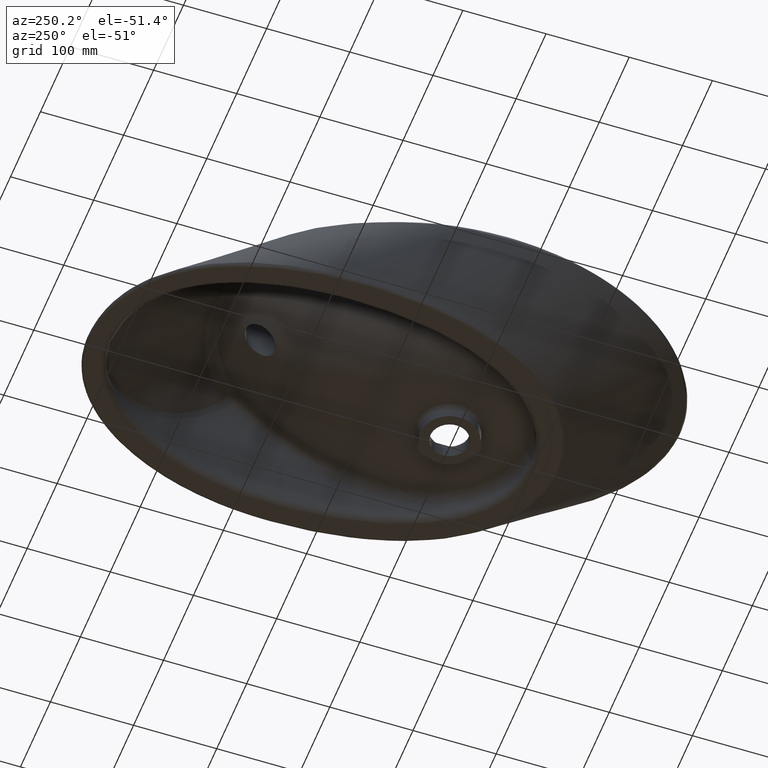
[diagram: clean part render]
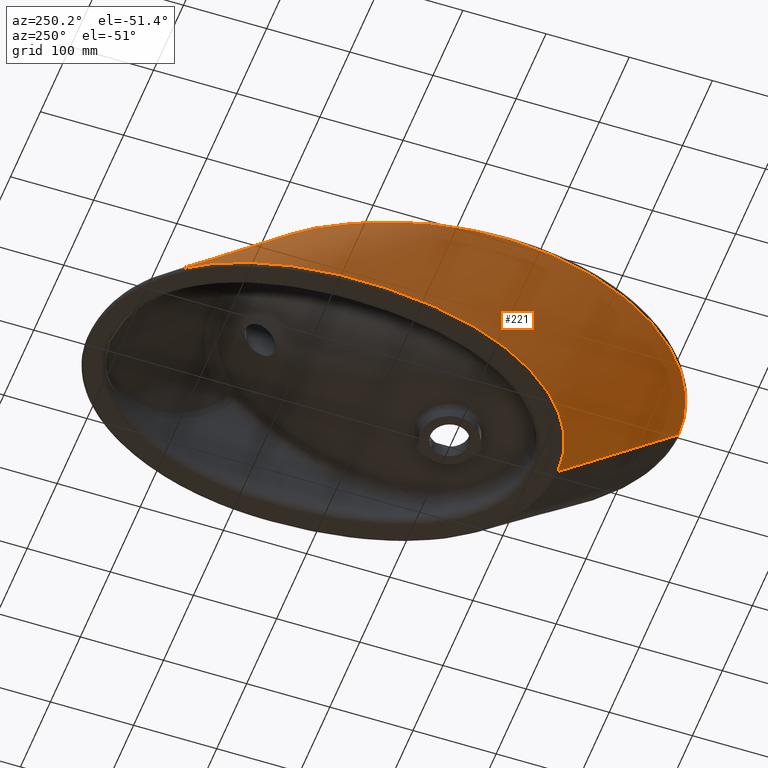
[diagram: same view with one face highlighted and labeled with its STEP entity id]
A machine part, auxiliary view. The second image highlights one B-rep face of the part: STEP entity #221.
In plain terms, the highlighted face is a freeform B-spline surface patch.
Its self-contained STEP definition (entity closure, byte-faithful):
#157=FACE_OUTER_BOUND('',#400,.T.);
#187=B_SPLINE_SURFACE_WITH_KNOTS('',3,3,((#13417,#13418,#13419,#13420,#13421,
#13422,#13423,#13424,#13425,#13426,#13427,#13428,#13429,#13430,#13431,#13432,
#13433,#13434,#13435,#13436,#13437),(#13438,#13439,#13440,#13441,#13442,
#13443,#13444,#13445,#13446,#13447,#13448,#13449,#13450,#13451,#13452,#13453,
#13454,#13455,#13456,#13457,#13458),(#13459,#13460,#13461,#13462,#13463,
#13464,#13465,#13466,#13467,#13468,#13469,#13470,#13471,#13472,#13473,#13474,
#13475,#13476,#13477,#13478,#13479),(#13480,#13481,#13482,#13483,#13484,
#13485,#13486,#13487,#13488,#13489,#13490,#13491,#13492,#13493,#13494,#13495,
#13496,#13497,#13498,#13499,#13500),(#13501,#13502,#13503,#13504,#13505,
#13506,#13507,#13508,#13509,#13510,#13511,#13512,#13513,#13514,#13515,#13516,
#13517,#13518,#13519,#13520,#13521),(#13522,#13523,#13524,#13525,#13526,
#13527,#13528,#13529,#13530,#13531,#13532,#13533,#13534,#13535,#13536,#13537,
#13538,#13539,#13540,#13541,#13542),(#13543,#13544,#13545,#13546,#13547,
#13548,#13549,#13550,#13551,#13552,#13553,#13554,#13555,#13556,#13557,#13558,
#13559,#13560,#13561,#13562,#13563),(#13564,#13565,#13566,#13567,#13568,
#13569,#13570,#13571,#13572,#13573,#13574,#13575,#13576,#13577,#13578,#13579,
#13580,#13581,#13582,#13583,#13584),(#13585,#13586,#13587,#13588,#13589,
#13590,#13591,#13592,#13593,#13594,#13595,#13596,#13597,#13598,#13599,#13600,
#13601,#13602,#13603,#13604,#13605),(#13606,#13607,#13608,#13609,#13610,
#13611,#13612,#13613,#13614,#13615,#13616,#13617,#13618,#13619,#13620,#13621,
#13622,#13623,#13624,#13625,#13626),(#13627,#13628,#13629,#13630,#13631,
#13632,#13633,#13634,#13635,#13636,#13637,#13638,#13639,#13640,#13641,#13642,
#13643,#13644,#13645,#13646,#13647),(#13648,#13649,#13650,#13651,#13652,
#13653,#13654,#13655,#13656,#13657,#13658,#13659,#13660,#13661,#13662,#13663,
#13664,#13665,#13666,#13667,#13668),(#13669,#13670,#13671,#13672,#13673,
#13674,#13675,#13676,#13677,#13678,#13679,#13680,#13681,#13682,#13683,#13684,
#13685,#13686,#13687,#13688,#13689),(#13690,#13691,#13692,#13693,#13694,
#13695,#13696,#13697,#13698,#13699,#13700,#13701,#13702,#13703,#13704,#13705,
#13706,#13707,#13708,#13709,#13710),(#13711,#13712,#13713,#13714,#13715,
#13716,#13717,#13718,#13719,#13720,#13721,#13722,#13723,#13724,#13725,#13726,
#13727,#13728,#13729,#13730,#13731),(#13732,#13733,#13734,#13735,#13736,
#13737,#13738,#13739,#13740,#13741,#13742,#13743,#13744,#13745,#13746,#13747,
#13748,#13749,#13750,#13751,#13752),(#13753,#13754,#13755,#13756,#13757,
#13758,#13759,#13760,#13761,#13762,#13763,#13764,#13765,#13766,#13767,#13768,
#13769,#13770,#13771,#13772,#13773),(#13774,#13775,#13776,#13777,#13778,
#13779,#13780,#13781,#13782,#13783,#13784,#13785,#13786,#13787,#13788,#13789,
#13790,#13791,#13792,#13793,#13794),(#13795,#13796,#13797,#13798,#13799,
#13800,#13801,#13802,#13803,#13804,#13805,#13806,#13807,#13808,#13809,#13810,
#13811,#13812,#13813,#13814,#13815),(#13816,#13817,#13818,#13819,#13820,
#13821,#13822,#13823,#13824,#13825,#13826,#13827,#13828,#13829,#13830,#13831,
#13832,#13833,#13834,#13835,#13836),(#13837,#13838,#13839,#13840,#13841,
#13842,#13843,#13844,#13845,#13846,#13847,#13848,#13849,#13850,#13851,#13852,
#13853,#13854,#13855,#13856,#13857),(#13858,#13859,#13860,#13861,#13862,
#13863,#13864,#13865,#13866,#13867,#13868,#13869,#13870,#13871,#13872,#13873,
#13874,#13875,#13876,#13877,#13878),(#13879,#13880,#13881,#13882,#13883,
#13884,#13885,#13886,#13887,#13888,#13889,#13890,#13891,#13892,#13893,#13894,
#13895,#13896,#13897,#13898,#13899),(#13900,#13901,#13902,#13903,#13904,
#13905,#13906,#13907,#13908,#13909,#13910,#13911,#13912,#13913,#13914,#13915,
#13916,#13917,#13918,#13919,#13920),(#13921,#13922,#13923,#13924,#13925,
#13926,#13927,#13928,#13929,#13930,#13931,#13932,#13933,#13934,#13935,#13936,
#13937,#13938,#13939,#13940,#13941),(#13942,#13943,#13944,#13945,#13946,
#13947,#13948,#13949,#13950,#13951,#13952,#13953,#13954,#13955,#13956,#13957,
#13958,#13959,#13960,#13961,#13962),(#13963,#13964,#13965,#13966,#13967,
#13968,#13969,#13970,#13971,#13972,#13973,#13974,#13975,#13976,#13977,#13978,
#13979,#13980,#13981,#13982,#13983),(#13984,#13985,#13986,#13987,#13988,
#13989,#13990,#13991,#13992,#13993,#13994,#13995,#13996,#13997,#13998,#13999,
#14000,#14001,#14002,#14003,#14004),(#14005,#14006,#14007,#14008,#14009,
#14010,#14011,#14012,#14013,#14014,#14015,#14016,#14017,#14018,#14019,#14020,
#14021,#14022,#14023,#14024,#14025),(#14026,#14027,#14028,#14029,#14030,
#14031,#14032,#14033,#14034,#14035,#14036,#14037,#14038,#14039,#14040,#14041,
#14042,#14043,#14044,#14045,#14046),(#14047,#14048,#14049,#14050,#14051,
#14052,#14053,#14054,#14055,#14056,#14057,#14058,#14059,#14060,#14061,#14062,
#14063,#14064,#14065,#14066,#14067),(#14068,#14069,#14070,#14071,#14072,
#14073,#14074,#14075,#14076,#14077,#14078,#14079,#14080,#14081,#14082,#14083,
#14084,#14085,#14086,#14087,#14088),(#14089,#14090,#14091,#14092,#14093,
#14094,#14095,#14096,#14097,#14098,#14099,#14100,#14101,#14102,#14103,#14104,
#14105,#14106,#14107,#14108,#14109),(#14110,#14111,#14112,#14113,#14114,
#14115,#14116,#14117,#14118,#14119,#14120,#14121,#14122,#14123,#14124,#14125,
#14126,#14127,#14128,#14129,#14130),(#14131,#14132,#14133,#14134,#14135,
#14136,#14137,#14138,#14139,#14140,#14141,#14142,#14143,#14144,#14145,#14146,
#14147,#14148,#14149,#14150,#14151),(#14152,#14153,#14154,#14155,#14156,
#14157,#14158,#14159,#14160,#14161,#14162,#14163,#14164,#14165,#14166,#14167,
#14168,#14169,#14170,#14171,#14172),(#14173,#14174,#14175,#14176,#14177,
#14178,#14179,#14180,#14181,#14182,#14183,#14184,#14185,#14186,#14187,#14188,
#14189,#14190,#14191,#14192,#14193),(#14194,#14195,#14196,#14197,#14198,
#14199,#14200,#14201,#14202,#14203,#14204,#14205,#14206,#14207,#14208,#14209,
#14210,#14211,#14212,#14213,#14214),(#14215,#14216,#14217,#14218,#14219,
#14220,#14221,#14222,#14223,#14224,#14225,#14226,#14227,#14228,#14229,#14230,
#14231,#14232,#14233,#14234,#14235)),.UNSPECIFIED.,.F.,.F.,.F.,(4,1,1,1,
1,1,1,1,1,1,1,1,1,1,1,1,1,1,1,1,1,1,1,1,1,1,1,1,1,1,1,1,1,2,1,4),(4,1,1,
1,1,1,1,1,1,1,1,1,1,1,1,1,1,1,4),(0.,0.0297564168713615,0.059512833742723,
0.0892692506140845,0.0967083548319248,0.104147459049765,0.111586563267606,
0.115306115376526,0.119025667485446,0.178538501228169,0.20829491809953,
0.238051334970892,0.252929543406573,0.267807751842253,0.297564168713615,
0.327320585584976,0.334759689802817,0.342198794020657,0.357077002456338,
0.416589836199061,0.476102669941784,0.535615503684507,0.565371920555868,
0.572811024773709,0.580250128991549,0.59512833742723,0.654641171169953,
0.714154004912676,0.773666838655399,0.788545047091079,0.80342325552676,
0.833179672398122,0.892692506140845,0.952205339883568,0.970757501777313,
1.),(0.,0.058394580272612,0.0586939268483048,0.0588489091143076,0.0590229284590646,
0.0599337849763272,0.0611736431043497,0.0634213657642327,0.0684481512558534,
0.0686127918724844,0.0735722243845743,0.0785017222390948,0.0785316568966641,
0.0801848010673607,0.0804603250958101,0.0805980871100348,0.0806669681171472,
0.0807358491242596,1.),.UNSPECIFIED.);
#221=ADVANCED_FACE('',(#157),#187,.F.);
#304=B_SPLINE_CURVE_WITH_KNOTS('',3,(#10709,#10710,#10711,#10712,#10713,
#10714,#10715,#10716,#10717,#10718,#10719,#10720,#10721,#10722,#10723,#10724,
#10725,#10726,#10727,#10728,#10729,#10730,#10731,#10732,#10733,#10734,#10735,
#10736,#10737,#10738,#10739,#10740,#10741,#10742,#10743,#10744,#10745,#10746,
#10747,#10748,#10749,#10750,#10751,#10752,#10753,#10754,#10755,#10756,#10757,
#10758,#10759,#10760,#10761,#10762,#10763,#10764,#10765,#10766,#10767,#10768,
#10769,#10770,#10771,#10772,#10773,#10774,#10775,#10776,#10777,#10778,#10779,
#10780,#10781,#10782,#10783,#10784,#10785,#10786,#10787,#10788,#10789,#10790,
#10791,#10792,#10793,#10794),.UNSPECIFIED.,.F.,.F.,(4,2,2,2,2,2,2,2,2,2,
2,2,2,2,1,1,2,2,2,2,2,2,2,2,2,2,2,2,1,1,1,2,2,2,2,2,2,2,2,2,2,2,1,1,1,2,
4),(0.,0.0625000000000036,0.0937500000000052,0.109375000000006,0.117187500000006,
0.121093750000006,0.123046875000006,0.124023437500006,0.125000000000006,
0.187500000000012,0.218750000000014,0.234375000000015,0.242187500000016,
0.246093750000016,0.248046875000017,0.249023437500017,0.249511718750017,
0.250000000000017,0.281250000000016,0.296875000000015,0.304687500000015,
0.312500000000015,0.343750000000014,0.375000000000013,0.437500000000012,
0.468750000000011,0.484375000000011,0.492187500000011,0.496093750000011,
0.49804687500001,0.49902343750001,0.49951171875001,0.50000000000001,0.562500000000009,
0.625000000000008,0.687500000000007,0.750000000000005,0.812500000000004,
0.875000000000003,0.937500000000001,0.968750000000001,0.984375,0.9921875,
0.99609375,0.998046875,0.9990234375,1.),.UNSPECIFIED.);
#305=B_SPLINE_CURVE_WITH_KNOTS('',3,(#12792,#12793,#12794,#12795),
 .UNSPECIFIED.,.F.,.F.,(4,4),(0.,1.),.UNSPECIFIED.);
#306=B_SPLINE_CURVE_WITH_KNOTS('',3,(#12797,#12798,#12799,#12800),
 .UNSPECIFIED.,.F.,.F.,(4,4),(0.,1.),.UNSPECIFIED.);
#308=B_SPLINE_CURVE_WITH_KNOTS('',3,(#13369,#13370,#13371,#13372,#13373,
#13374,#13375,#13376,#13377,#13378,#13379,#13380,#13381,#13382,#13383,#13384,
#13385,#13386,#13387,#13388,#13389,#13390,#13391,#13392,#13393,#13394,#13395,
#13396,#13397,#13398,#13399,#13400,#13401,#13402,#13403,#13404,#13405,#13406,
#13407,#13408,#13409,#13410,#13411,#13412,#13413,#13414,#13415,#13416),
 .UNSPECIFIED.,.F.,.F.,(4,2,2,2,2,2,2,2,2,2,2,2,2,2,2,2,2,2,2,2,2,2,2,4),
(0.,0.0312500000000001,0.0625000000000003,0.0937500000000004,0.125000000000001,
0.187500000000001,0.218750000000001,0.250000000000001,0.312500000000001,
0.375000000000001,0.437500000000001,0.500000000000001,0.562500000000001,
0.625000000000001,0.687500000000001,0.718750000000001,0.750000000000001,
0.781250000000001,0.812500000000001,0.875,0.9375,0.96875,0.984375,1.),
 .UNSPECIFIED.);
#400=EDGE_LOOP('',(#551,#552,#553,#554));
#551=ORIENTED_EDGE('',*,*,#775,.F.);
#552=ORIENTED_EDGE('',*,*,#773,.F.);
#553=ORIENTED_EDGE('',*,*,#774,.F.);
#554=ORIENTED_EDGE('',*,*,#777,.F.);
#685=VERTEX_POINT('',#10437);
#687=VERTEX_POINT('',#10483);
#688=VERTEX_POINT('',#12796);
#689=VERTEX_POINT('',#12801);
#773=EDGE_CURVE('',#685,#687,#304,.T.);
#774=EDGE_CURVE('',#688,#685,#305,.T.);
#775=EDGE_CURVE('',#687,#689,#306,.T.);
#777=EDGE_CURVE('',#689,#688,#308,.T.);
#10437=CARTESIAN_POINT('',(0.0313768055137461,289.070918242235,-4.72945627297798));
#10483=CARTESIAN_POINT('',(0.204482560587401,-275.767148931823,-12.3387579224824));
#10709=CARTESIAN_POINT('',(0.0313768055085416,289.070918268956,-4.72945629695537));
#10710=CARTESIAN_POINT('',(-19.101085648512,289.082509225625,-4.72936313931332));
#10711=CARTESIAN_POINT('',(-36.0867438405371,285.340172195709,-4.78640682413033));
#10712=CARTESIAN_POINT('',(-57.6098482472624,277.636073581814,-4.91489503876681));
#10713=CARTESIAN_POINT('',(-64.1429149485437,274.718407946547,-4.96358842586313));
#10714=CARTESIAN_POINT('',(-73.039226241227,270.151547366364,-5.04336923212814));
#10715=CARTESIAN_POINT('',(-75.8482270293773,268.59695021629,-5.07004130218508));
#10716=CARTESIAN_POINT('',(-79.8451274115944,266.254997199241,-5.11087371814948));
#10717=CARTESIAN_POINT('',(-81.1452322940432,265.471171439612,-5.12594251026798));
#10718=CARTESIAN_POINT('',(-83.0436540424227,264.291366143993,-5.15000927305411));
#10719=CARTESIAN_POINT('',(-83.6675780018386,263.897526908368,-5.15818021326958));
#10720=CARTESIAN_POINT('',(-84.5892203770136,263.306697191553,-5.17026099827667));
#10721=CARTESIAN_POINT('',(-84.8940338475567,263.109754156379,-5.17424740426068));
#10722=CARTESIAN_POINT('',(-85.3477314607858,262.814421409021,-5.18017652270203));
#10723=CARTESIAN_POINT('',(-85.4983860586655,262.715988116067,-5.18214786672494));
#10724=CARTESIAN_POINT('',(-85.7985509315979,262.519153860314,-5.1860822320536));
#10725=CARTESIAN_POINT('',(-85.9055336269799,262.448785155669,-5.18742726112659));
#10726=CARTESIAN_POINT('',(-98.5954979457136,254.070980253418,-5.35852744726301));
#10727=CARTESIAN_POINT('',(-110.973551514301,243.340571835434,-5.61065660353782));
#10728=CARTESIAN_POINT('',(-128.020882200968,223.52829385504,-6.05730222348264));
#10729=CARTESIAN_POINT('',(-133.455363420233,216.329514683561,-6.21623046584859));
#10730=CARTESIAN_POINT('',(-141.193798619137,204.711054107631,-6.45712243214788));
#10731=CARTESIAN_POINT('',(-143.705137193632,200.701545482423,-6.53783332333806));
#10732=CARTESIAN_POINT('',(-147.368794510919,194.494991805071,-6.65787084014279));
#10733=CARTESIAN_POINT('',(-148.57281224848,192.394128756398,-6.69771301745283));
#10734=CARTESIAN_POINT('',(-150.353102376866,189.19675157182,-6.75703112646477));
#10735=CARTESIAN_POINT('',(-150.942233519447,188.123288802831,-6.77671891700744));
#10736=CARTESIAN_POINT('',(-151.819523342083,186.501846868566,-6.80611413793715));
#10737=CARTESIAN_POINT('',(-152.256569154454,185.68831199985,-6.82078052795019));
#10738=CARTESIAN_POINT('',(-152.763671893778,184.734313546212,-6.83784358496901));
#10739=CARTESIAN_POINT('',(-152.980405181013,184.324420091096,-6.84514680723745));
#10740=CARTESIAN_POINT('',(-153.124761279028,184.050928615363,-6.85001357838463));
#10741=CARTESIAN_POINT('',(-153.176949654647,183.951881063393,-6.85168835571435));
#10742=CARTESIAN_POINT('',(-159.743285371764,171.474728419387,-7.08133818605526));
#10743=CARTESIAN_POINT('',(-165.078252190311,159.459748946129,-7.28076199430004));
#10744=CARTESIAN_POINT('',(-172.010725439039,142.211172480956,-7.52050288980131));
#10745=CARTESIAN_POINT('',(-174.139289581442,136.599457128446,-7.5795001930746));
#10746=CARTESIAN_POINT('',(-177.141155187182,128.401094163383,-7.67162982415152));
#10747=CARTESIAN_POINT('',(-178.105984737641,125.708272749901,-7.69704863302066));
#10748=CARTESIAN_POINT('',(-179.988167072368,120.369221520564,-7.78399308728121));
#10749=CARTESIAN_POINT('',(-180.908823652586,117.703956179663,-7.86392827772651));
#10750=CARTESIAN_POINT('',(-185.207535908758,104.619367047367,-8.20093390286934));
#10751=CARTESIAN_POINT('',(-187.848546124237,94.7820775348418,-8.46052075757333));
#10752=CARTESIAN_POINT('',(-192.072351011487,76.2885035040618,-8.91259848744294));
#10753=CARTESIAN_POINT('',(-193.641419298996,67.6755611719127,-9.11290148538234));
#10754=CARTESIAN_POINT('',(-197.231706007049,43.8938640106668,-9.63589277210422));
#10755=CARTESIAN_POINT('',(-198.166222525761,30.8055492578121,-9.86938767755144));
#10756=CARTESIAN_POINT('',(-198.834910095874,15.5375322272335,-10.0824648062856));
#10757=CARTESIAN_POINT('',(-198.926860179802,11.1712781453556,-10.1308394558333));
#10758=CARTESIAN_POINT('',(-198.982307257488,5.71099636334919,-10.1737078298111));
#10759=CARTESIAN_POINT('',(-198.986616303465,4.07234760845615,-10.1830265984318));
#10760=CARTESIAN_POINT('',(-198.982453340982,1.88674874076608,-10.1898494249091));
#10761=CARTESIAN_POINT('',(-198.979267810281,1.20359873914933,-10.1909442037));
#10762=CARTESIAN_POINT('',(-198.972883478059,0.246935994435652,-10.1908858201033));
#10763=CARTESIAN_POINT('',(-198.969287361385,-0.214379795241035,-10.1904313807011));
#10764=CARTESIAN_POINT('',(-198.96459804585,-0.722806206464761,-10.1891709318541));
#10765=CARTESIAN_POINT('',(-198.962154685467,-0.969575022684784,-10.1883597835843));
#10766=CARTESIAN_POINT('',(-198.961088989855,-1.07373778001281,-10.187973552947));
#10767=CARTESIAN_POINT('',(-198.960374690489,-1.14282511164506,-10.1877075084919));
#10768=CARTESIAN_POINT('',(-198.960949722278,-1.11478029085726,-10.186204253184));
#10769=CARTESIAN_POINT('',(-198.610302393438,-26.2441093684536,-10.6216317809074));
#10770=CARTESIAN_POINT('',(-195.857818641417,-49.9473214879409,-10.9419090952433));
#10771=CARTESIAN_POINT('',(-186.861053237751,-94.1966327816948,-11.4201149083898));
#10772=CARTESIAN_POINT('',(-180.607342648714,-114.773824965968,-11.6082110478883));
#10773=CARTESIAN_POINT('',(-165.42589952085,-152.2849468165,-11.9535057632777));
#10774=CARTESIAN_POINT('',(-156.498651999192,-169.221929671504,-12.1142976980909));
#10775=CARTESIAN_POINT('',(-136.955841661185,-199.12639437509,-12.3932690492407));
#10776=CARTESIAN_POINT('',(-126.333820032366,-212.068004150511,-12.5169923846073));
#10777=CARTESIAN_POINT('',(-104.465703710726,-233.932518040934,-12.6841081174123));
#10778=CARTESIAN_POINT('',(-93.2314791593885,-242.819021841463,-12.7356882764038));
#10779=CARTESIAN_POINT('',(-71.2694740569807,-256.968106008612,-12.7376421070098));
#10780=CARTESIAN_POINT('',(-60.5326964226758,-262.236715044397,-12.6938742017176));
#10781=CARTESIAN_POINT('',(-40.3891180588271,-269.906433769498,-12.5755070233578));
#10782=CARTESIAN_POINT('',(-30.9721724910627,-272.321598685589,-12.5019239104032));
#10783=CARTESIAN_POINT('',(-18.2364511925801,-274.504557160536,-12.4175125234818));
#10784=CARTESIAN_POINT('',(-14.2148508548634,-274.995756318647,-12.3927967166376));
#10785=CARTESIAN_POINT('',(-8.5523157204494,-275.464734993052,-12.3651247220184));
#10786=CARTESIAN_POINT('',(-6.72639056157911,-275.576424406391,-12.357426740277));
#10787=CARTESIAN_POINT('',(-4.08289128218188,-275.68758898789,-12.3484708041643));
#10788=CARTESIAN_POINT('',(-2.78497299254481,-275.729073308026,-12.3446392377263));
#10789=CARTESIAN_POINT('',(-1.31294083592705,-275.755040876828,-12.3413565292922));
#10790=CARTESIAN_POINT('',(-0.587528002598049,-275.762690145485,-12.3400186977307));
#10791=CARTESIAN_POINT('',(-0.278914241749213,-275.764854353879,-12.3395110985157));
#10792=CARTESIAN_POINT('',(-0.0736783996237444,-275.766052801692,-12.3391873907548));
#10793=CARTESIAN_POINT('',(-0.0186530615434142,-275.766460141031,-12.3391032448397));
#10794=CARTESIAN_POINT('',(0.204482801430505,-275.767124641201,-12.3387791753499));
#12792=CARTESIAN_POINT('',(0.00121391827016215,434.16008144241,-134.765959287589));
#12793=CARTESIAN_POINT('',(0.0112682140181337,385.797027042357,-91.4204582827133));
#12794=CARTESIAN_POINT('',(0.0213225097674902,337.433972642323,-48.0749572778367));
#12795=CARTESIAN_POINT('',(0.0313768055138009,289.07091824225,-4.72945627296193));
#12796=CARTESIAN_POINT('',(0.00122016811688981,434.160081440988,-134.765959286455));
#12797=CARTESIAN_POINT('',(0.204482560586113,-275.767148931808,-12.3387579224768));
#12798=CARTESIAN_POINT('',(0.683905732900014,-227.413837411532,-54.6450296882438));
#12799=CARTESIAN_POINT('',(1.16332890521389,-179.06052589148,-96.9513014540109));
#12800=CARTESIAN_POINT('',(1.64275207752779,-130.707214371304,-139.257573219778));
#12801=CARTESIAN_POINT('',(1.64274150535116,-130.70721462579,-139.257573123245));
#13369=CARTESIAN_POINT('',(1.6427520775278,-130.707214371305,-139.257573219778));
#13370=CARTESIAN_POINT('',(-6.26558679208489,-130.814013009012,-139.25848859783));
#13371=CARTESIAN_POINT('',(-14.0305969391614,-130.114115726365,-139.253064339649));
#13372=CARTESIAN_POINT('',(-29.3013942247321,-127.255333459053,-139.231395935131));
#13373=CARTESIAN_POINT('',(-36.8381221321701,-125.078513886339,-139.214649121763));
#13374=CARTESIAN_POINT('',(-51.519280727404,-119.337078658851,-139.172146042757));
#13375=CARTESIAN_POINT('',(-58.5099800394739,-115.84992443306,-139.147076423324));
#13376=CARTESIAN_POINT('',(-71.8969334265333,-107.828292911545,-139.090278053411));
#13377=CARTESIAN_POINT('',(-78.3244561572073,-103.258112874538,-139.058250230615));
#13378=CARTESIAN_POINT('',(-96.5517171801033,-88.336003932673,-138.958029239037));
#13379=CARTESIAN_POINT('',(-107.147374051434,-76.971646827506,-138.883985089207));
#13380=CARTESIAN_POINT('',(-121.336762357417,-58.3738617146941,-138.767605831742));
#13381=CARTESIAN_POINT('',(-125.797053866458,-51.878570266378,-138.727419542431));
#13382=CARTESIAN_POINT('',(-134.061236467157,-38.6081161798742,-138.644549760629));
#13383=CARTESIAN_POINT('',(-137.870603600572,-31.8292844117149,-138.602598525848));
#13384=CARTESIAN_POINT('',(-148.467847988871,-11.1230716673125,-138.476297686462));
#13385=CARTESIAN_POINT('',(-154.432825834551,3.1704627904147,-138.387791664281));
#13386=CARTESIAN_POINT('',(-164.47910463479,32.5957105146742,-138.205588623359));
#13387=CARTESIAN_POINT('',(-168.576063828747,47.7863828901518,-138.11176432277));
#13388=CARTESIAN_POINT('',(-174.876849715456,78.1639864312788,-137.910583028675));
#13389=CARTESIAN_POINT('',(-177.090951454718,93.4427718047414,-137.843116718313));
#13390=CARTESIAN_POINT('',(-180.506233305552,124.097331292317,-137.687362367566));
#13391=CARTESIAN_POINT('',(-181.600710293743,139.483314451172,-137.595630224268));
#13392=CARTESIAN_POINT('',(-182.453289231174,170.383245032039,-137.385385641129));
#13393=CARTESIAN_POINT('',(-182.21366407428,185.911279449688,-137.265839219348));
#13394=CARTESIAN_POINT('',(-180.185767402343,217.056875261111,-136.995578521308));
#13395=CARTESIAN_POINT('',(-178.411394534972,232.479470145656,-136.84644928076));
#13396=CARTESIAN_POINT('',(-173.099982964668,262.976594417035,-136.525713181814));
#13397=CARTESIAN_POINT('',(-169.5673578162,278.05198295625,-136.352992722066));
#13398=CARTESIAN_POINT('',(-162.602382418237,300.336253102251,-136.088942034999));
#13399=CARTESIAN_POINT('',(-159.991598331946,307.73808876537,-136.002699404942));
#13400=CARTESIAN_POINT('',(-154.205282771975,322.231990790358,-135.837353964751));
#13401=CARTESIAN_POINT('',(-151.029395097511,329.328811045022,-135.757336993199));
#13402=CARTESIAN_POINT('',(-144.040151018971,343.183960828273,-135.604004015088));
#13403=CARTESIAN_POINT('',(-140.227615165818,349.942725482538,-135.530626601879));
#13404=CARTESIAN_POINT('',(-131.862494939087,363.067286648299,-135.390888755181));
#13405=CARTESIAN_POINT('',(-127.277264997978,369.471858763293,-135.324153901759));
#13406=CARTESIAN_POINT('',(-112.459861551624,387.650136629303,-135.13937909145));
#13407=CARTESIAN_POINT('',(-101.236132530605,398.376331072132,-135.036921971233));
#13408=CARTESIAN_POINT('',(-75.3960978795345,416.317088487701,-134.879437331493));
#13409=CARTESIAN_POINT('',(-61.407223882171,423.063849248765,-134.829803225893));
#13410=CARTESIAN_POINT('',(-39.0131148746347,429.792794139749,-134.787653405192));
#13411=CARTESIAN_POINT('',(-31.2605909123718,431.471547502695,-134.778635581275));
#13412=CARTESIAN_POINT('',(-19.5896113115504,433.103178438085,-134.770555697487));
#13413=CARTESIAN_POINT('',(-15.6872344065339,433.503130093006,-134.768742774867));
#13414=CARTESIAN_POINT('',(-7.85975815868405,434.031643191184,-134.766450203917));
#13415=CARTESIAN_POINT('',(-3.88264505535383,434.160187437275,-134.765970348291));
#13416=CARTESIAN_POINT('',(0.00121391826998959,434.160081442366,-134.765959287555));
#13417=CARTESIAN_POINT('',(0.0346471883478428,273.339761442961,9.36962992641171));
#13418=CARTESIAN_POINT('',(0.0339727826664296,276.583779669186,6.46217097806896));
#13419=CARTESIAN_POINT('',(0.0332949197972018,279.844427619314,3.53980760064926));
#13420=CARTESIAN_POINT('',(0.0326152670200714,283.113685363252,0.609727675323531));
#13421=CARTESIAN_POINT('',(0.0326080101550529,283.148592249469,0.578442296631745));
#13422=CARTESIAN_POINT('',(0.0325936908918305,283.217470599933,0.516709913383757));
#13423=CARTESIAN_POINT('',(0.0325668422732884,283.346617507053,0.400961694793775));
#13424=CARTESIAN_POINT('',(0.0325160442181592,283.590965710573,0.18196404395128));
#13425=CARTESIAN_POINT('',(0.0324177108289004,284.063967815677,-0.241965202792299));
#13426=CARTESIAN_POINT('',(0.0323317952495661,284.477237918462,-0.612359502280235));
#13427=CARTESIAN_POINT('',(0.0322145618232306,285.041152758204,-1.11776950079882));
#13428=CARTESIAN_POINT('',(0.0320984519829347,285.599662937677,-1.61833555986737));
#13429=CARTESIAN_POINT('',(0.0319838978771557,286.150689741391,-2.11219462585129));
#13430=CARTESIAN_POINT('',(0.031907528473303,286.518040943867,-2.4414340031739));
#13431=CARTESIAN_POINT('',(0.0318849083450642,286.626848016982,-2.53895259780067));
#13432=CARTESIAN_POINT('',(0.0318610429063604,286.741645267754,-2.64183990321402));
#13433=CARTESIAN_POINT('',(0.0318554743039962,286.768431292935,-2.66584694114378));
#13434=CARTESIAN_POINT('',(0.0318522922455024,286.783737593038,-2.67956524853223));
#13435=CARTESIAN_POINT('',(0.0212340144758639,337.859651635549,-48.4564730758393));
#13436=CARTESIAN_POINT('',(0.0106165322215667,388.931739106038,-94.2299513263578));
#13437=CARTESIAN_POINT('',(-1.54518465911302E-007,440.,-140.));
#13438=CARTESIAN_POINT('',(-7.77514626016725,273.342893454672,9.36914613575392));
#13439=CARTESIAN_POINT('',(-7.77130722195728,276.586851362014,6.46169729630525));
#13440=CARTESIAN_POINT('',(-7.76744853577983,279.847523396728,3.53943865466383));
#13441=CARTESIAN_POINT('',(-7.76357959903265,283.116632351479,0.609270757464793));
#13442=CARTESIAN_POINT('',(-7.76353828895946,283.151538273871,0.577985136643083));
#13443=CARTESIAN_POINT('',(-7.76345677533698,283.220416088175,0.516253799368628));
#13444=CARTESIAN_POINT('',(-7.76330393330177,283.349573180096,0.400520027420182));
#13445=CARTESIAN_POINT('',(-7.7630147434624,283.593960020934,0.181571319290491));
#13446=CARTESIAN_POINT('',(-7.7624549110653,284.067070846147,-0.242225331155611));
#13447=CARTESIAN_POINT('',(-7.7619657554024,284.480506237067,-0.612425344038471));
#13448=CARTESIAN_POINT('',(-7.76129832087676,285.044644073679,-1.11757307096134));
#13449=CARTESIAN_POINT('',(-7.76063730894003,285.603371857718,-1.61788300394403));
#13450=CARTESIAN_POINT('',(-7.75998521044294,286.154560327043,-2.11154853675921));
#13451=CARTESIAN_POINT('',(-7.7595504810609,286.521986348371,-2.44069566534159));
#13452=CARTESIAN_POINT('',(-7.7594217172678,286.630812012871,-2.53819091915553));
#13453=CARTESIAN_POINT('',(-7.75928586445724,286.74561500979,-2.64106907293407));
#13454=CARTESIAN_POINT('',(-7.75925416546436,286.772401939875,-2.6650744617938));
#13455=CARTESIAN_POINT('',(-7.75923605174819,286.787708069384,-2.67879259414823));
#13456=CARTESIAN_POINT('',(-7.69879200534703,337.86229851519,-48.4559579927736));
#13457=CARTESIAN_POINT('',(-7.63835248758659,388.933062495556,-94.2296937953291));
#13458=CARTESIAN_POINT('',(-7.5779174981501,439.999999994848,-140.000000001703));
#13459=CARTESIAN_POINT('',(-23.5624010677585,272.032476314049,9.37197065260381));
#13460=CARTESIAN_POINT('',(-23.5370167302229,275.283493155044,6.46446405254961));
#13461=CARTESIAN_POINT('',(-23.5115023685021,278.551433664608,3.54234123370925));
#13462=CARTESIAN_POINT('',(-23.4859204430282,281.827477676026,0.611915354866329));
#13463=CARTESIAN_POINT('',(-23.4856472961647,281.862458815406,0.580628284002048));
#13464=CARTESIAN_POINT('',(-23.4851083199887,281.931488050392,0.51889744740487));
#13465=CARTESIAN_POINT('',(-23.4840977247229,282.060951898226,0.403190151148842));
#13466=CARTESIAN_POINT('',(-23.4821856201006,282.305958291026,0.184335311181256));
#13467=CARTESIAN_POINT('',(-23.4784841197285,282.780343464787,-0.239195596685444));
#13468=CARTESIAN_POINT('',(-23.4752499737771,283.19503856171,-0.608999811967764));
#13469=CARTESIAN_POINT('',(-23.4708370327968,283.760890805796,-1.1136124619259));
#13470=CARTESIAN_POINT('',(-23.4664664941203,284.321310295217,-1.61339944728405));
#13471=CARTESIAN_POINT('',(-23.4621547442166,284.874057392062,-2.10667252943138));
#13472=CARTESIAN_POINT('',(-23.4592802549517,285.242453386484,-2.43563533476191));
#13473=CARTESIAN_POINT('',(-23.4584288506138,285.351558920475,-2.53308430364515));
#13474=CARTESIAN_POINT('',(-23.4575305719102,285.466628144327,-2.63594612014697));
#13475=CARTESIAN_POINT('',(-23.4573209734593,285.493476210611,-2.65994879875257));
#13476=CARTESIAN_POINT('',(-23.4572012028867,285.50881595911,-2.6736668514179));
#13477=CARTESIAN_POINT('',(-23.0575360825934,336.693829015438,-48.4525409601437));
#13478=CARTESIAN_POINT('',(-22.6579009058042,387.875007312549,-94.2279853447215));
#13479=CARTESIAN_POINT('',(-22.2582956712483,439.052350866287,-140.000000005134));
#13480=CARTESIAN_POINT('',(-47.1550640927743,266.03740290189,9.38438767768908));
#13481=CARTESIAN_POINT('',(-47.0713347996711,269.324862494943,6.47662387996766));
#13482=CARTESIAN_POINT('',(-46.987176520217,272.629701909358,3.55454455660082));
#13483=CARTESIAN_POINT('',(-46.9027956159171,275.9421981784,0.623552153275327));
#13484=CARTESIAN_POINT('',(-46.9018946534264,275.97757005401,0.59226073371069));
#13485=CARTESIAN_POINT('',(-46.9001168656711,276.04737550702,0.530527187135271));
#13486=CARTESIAN_POINT('',(-46.8967834743177,276.178330086091,0.414854434502798));
#13487=CARTESIAN_POINT('',(-46.8904765242329,276.426216542416,0.196131749310615));
#13488=CARTESIAN_POINT('',(-46.8782674339222,276.906308351248,-0.226995312006637));
#13489=CARTESIAN_POINT('',(-46.867599915055,277.326223099845,-0.596184302926473));
#13490=CARTESIAN_POINT('',(-46.853044202774,277.899192603407,-1.0999630745665));
#13491=CARTESIAN_POINT('',(-46.838628308808,278.466652442095,-1.5989338974079));
#13492=CARTESIAN_POINT('',(-46.8244062164446,279.026169008851,-2.091599997916));
#13493=CARTESIAN_POINT('',(-46.8149248487474,279.398966208037,-2.4202837010169));
#13494=CARTESIAN_POINT('',(-46.8121165308725,279.509363475937,-2.51766333546881));
#13495=CARTESIAN_POINT('',(-46.8091535980832,279.625748647165,-2.62050467928771));
#13496=CARTESIAN_POINT('',(-46.8084622466845,279.652901996658,-2.64450457618949));
#13497=CARTESIAN_POINT('',(-46.8080671886472,279.66841439233,-2.65822305113386));
#13498=CARTESIAN_POINT('',(-45.4897888446641,331.426221787196,-48.4422454807303));
#13499=CARTESIAN_POINT('',(-44.1716092647557,383.180151523505,-94.2228378005456));
#13500=CARTESIAN_POINT('',(-42.8535284496738,434.930203596029,-140.000000010449));
#13501=CARTESIAN_POINT('',(-64.3958818072852,258.573179324121,9.40212595843708));
#13502=CARTESIAN_POINT('',(-64.2564316306599,261.908385108485,6.49399763116147));
#13503=CARTESIAN_POINT('',(-64.1162669288053,265.261422521657,3.57178456902726));
#13504=CARTESIAN_POINT('',(-63.9757315378468,268.621828337801,0.640190578793306));
#13505=CARTESIAN_POINT('',(-63.9742309959931,268.657712738104,0.608893828472662));
#13506=CARTESIAN_POINT('',(-63.971270112377,268.728533877803,0.547154701015343));
#13507=CARTESIAN_POINT('',(-63.9657183926966,268.861419910728,0.431501908439108));
#13508=CARTESIAN_POINT('',(-63.9552142514959,269.113005666602,0.212867534475749));
#13509=CARTESIAN_POINT('',(-63.9348801880988,269.600369329576,-0.209963333917967));
#13510=CARTESIAN_POINT('',(-63.917113595515,270.02682142346,-0.57868649298524));
#13511=CARTESIAN_POINT('',(-63.8928712707261,270.608708630618,-1.08183252298103));
#13512=CARTESIAN_POINT('',(-63.8688618119557,271.184994705762,-1.58018338543575));
#13513=CARTESIAN_POINT('',(-63.8451751155915,271.753080259703,-2.07239440378465));
#13514=CARTESIAN_POINT('',(-63.8293840274806,272.131501313824,-2.40087479399463));
#13515=CARTESIAN_POINT('',(-63.8247068122932,272.243554987034,-2.49820473472306));
#13516=CARTESIAN_POINT('',(-63.8197720862774,272.361650544412,-2.60103557908199));
#13517=CARTESIAN_POINT('',(-63.8186206494088,272.389201462899,-2.62503474583893));
#13518=CARTESIAN_POINT('',(-63.8179626853192,272.404939817299,-2.6387541723502));
#13519=CARTESIAN_POINT('',(-61.622386787606,324.913824903078,-48.4292667157771));
#13520=CARTESIAN_POINT('',(-59.4269753833839,377.418776067151,-94.2163486630613));
#13521=CARTESIAN_POINT('',(-57.2317284691429,429.919793293619,-140.000000014261));
#13522=CARTESIAN_POINT('',(-75.4784068433948,252.486123505768,9.42008446677344));
#13523=CARTESIAN_POINT('',(-75.3011588620308,255.860084582302,6.51159092561785));
#13524=CARTESIAN_POINT('',(-75.1230026810859,259.252215235425,3.58916751122215));
#13525=CARTESIAN_POINT('',(-74.944375386599,262.651538676592,0.657048607686445));
#13526=CARTESIAN_POINT('',(-74.9424681253706,262.687839201014,0.625746909061272));
#13527=CARTESIAN_POINT('',(-74.9387046987159,262.759484512421,0.564001496201017));
#13528=CARTESIAN_POINT('',(-74.931648193198,262.893934021687,0.448357376960402));
#13529=CARTESIAN_POINT('',(-74.918296913849,263.148507842371,0.22977312984923));
#13530=CARTESIAN_POINT('',(-74.8924513134788,263.641733900775,-0.192872222571579));
#13531=CARTESIAN_POINT('',(-74.8698690867681,264.073433280588,-0.561292012853377));
#13532=CARTESIAN_POINT('',(-74.8390558962454,264.662479201995,-1.06402551801727));
#13533=CARTESIAN_POINT('',(-74.8085387081472,265.245851596886,-1.56197205050535));
#13534=CARTESIAN_POINT('',(-74.7784317963468,265.820833796292,-2.05389104472102));
#13535=CARTESIAN_POINT('',(-74.758360576333,266.203791801805,-2.38224539912857));
#13536=CARTESIAN_POINT('',(-74.752415614591,266.317182923771,-2.47954519326066));
#13537=CARTESIAN_POINT('',(-74.7461433428665,266.436664098341,-2.58237297244684));
#13538=CARTESIAN_POINT('',(-74.7446798116942,266.464537245343,-2.60637264949657));
#13539=CARTESIAN_POINT('',(-74.7438435079482,266.480458965975,-2.62009322331418));
#13540=CARTESIAN_POINT('',(-71.953161607746,319.599112385801,-48.4168265499148));
#13541=CARTESIAN_POINT('',(-69.1626887847039,372.713786188922,-94.2101288143855));
#13542=CARTESIAN_POINT('',(-66.372425037254,425.824480376752,-140.00000001668));
#13543=CARTESIAN_POINT('',(-81.0430473574427,249.155578088175,9.43283346427788));
#13544=CARTESIAN_POINT('',(-80.8447142766142,252.551607032476,6.52408339383812));
#13545=CARTESIAN_POINT('',(-80.6453649428679,255.965988523198,3.60148078062927));
#13546=CARTESIAN_POINT('',(-80.4454884702896,259.387481869583,0.669024822732363));
#13547=CARTESIAN_POINT('',(-80.4433543248417,259.424019390523,0.637719839250208));
#13548=CARTESIAN_POINT('',(-80.4391432079174,259.496133911791,0.575969719554002));
#13549=CARTESIAN_POINT('',(-80.4312472739465,259.631472287005,0.460327033444114));
#13550=CARTESIAN_POINT('',(-80.4163077513967,259.887742814528,0.241762351656263));
#13551=CARTESIAN_POINT('',(-80.3873876082372,260.384293217267,-0.180799935475397));
#13552=CARTESIAN_POINT('',(-80.3621190431772,260.818960229857,-0.549075910897834));
#13553=CARTESIAN_POINT('',(-80.327640375818,261.412054976026,-1.05161379352483));
#13554=CARTESIAN_POINT('',(-80.2934929252387,261.999435541702,-1.54936865173035));
#13555=CARTESIAN_POINT('',(-80.259804558361,262.578324464355,-2.04115244652087));
#13556=CARTESIAN_POINT('',(-80.237345707622,262.963856246946,-2.36945135084453));
#13557=CARTESIAN_POINT('',(-80.2306935455158,263.078006496369,-2.46673834398712));
#13558=CARTESIAN_POINT('',(-80.2236751367697,263.198275737937,-2.5695671344862));
#13559=CARTESIAN_POINT('',(-80.2220375067955,263.226332213152,-2.59356767536041));
#13560=CARTESIAN_POINT('',(-80.2211017179916,263.242358320791,-2.60728915936101));
#13561=CARTESIAN_POINT('',(-77.0984456874388,316.70825752853,-48.408290827384));
#13562=CARTESIAN_POINT('',(-73.9760236063581,370.17015111805,-94.2058611135196));
#13563=CARTESIAN_POINT('',(-70.8538354716497,423.628039069886,-140.000000017686));
#13564=CARTESIAN_POINT('',(-85.2247925624932,246.4341974839,9.4450146195098));
#13565=CARTESIAN_POINT('',(-85.0163115176951,249.845185952678,6.53602002844217));
#13566=CARTESIAN_POINT('',(-84.8067622425355,253.274662039895,3.61323737252294));
#13567=CARTESIAN_POINT('',(-84.5966588555444,256.711173323583,0.680469502673245));
#13568=CARTESIAN_POINT('',(-84.5944155140523,256.747871419884,0.649161438792573));
#13569=CARTESIAN_POINT('',(-84.5899889296754,256.820304119381,0.587406748014553));
#13570=CARTESIAN_POINT('',(-84.5816889862781,256.956246672656,0.471764059248595));
#13571=CARTESIAN_POINT('',(-84.5659850448726,257.213672762891,0.25321340649667));
#13572=CARTESIAN_POINT('',(-84.5355851031674,257.712493973294,-0.169283311393799));
#13573=CARTESIAN_POINT('',(-84.5090235630721,258.149197982334,-0.537442175128338));
#13574=CARTESIAN_POINT('',(-84.472780678834,258.745071848437,-1.03982068955694));
#13575=CARTESIAN_POINT('',(-84.4368859930954,259.335203393532,-1.53741939557823));
#13576=CARTESIAN_POINT('',(-84.4014739468204,259.916766362973,-2.02909440559255));
#13577=CARTESIAN_POINT('',(-84.3778659817967,260.30405502639,-2.3573499664093));
#13578=CARTESIAN_POINT('',(-84.3708734598997,260.418722959521,-2.45462716409034));
#13579=CARTESIAN_POINT('',(-84.3634959508307,260.539527580919,-2.55745783025624));
#13580=CARTESIAN_POINT('',(-84.3617745306383,260.567708506024,-2.58145934399596));
#13581=CARTESIAN_POINT('',(-84.3607908616847,260.583805426348,-2.5951817217198));
#13582=CARTESIAN_POINT('',(-81.0783622456252,314.285072367146,-48.4002195049208));
#13583=CARTESIAN_POINT('',(-77.7961795496216,367.982316049146,-94.2018256038789));
#13584=CARTESIAN_POINT('',(-74.5142427697894,421.675536463351,-140.00000001847));
#13585=CARTESIAN_POINT('',(-88.5465724779312,244.137436366818,9.4563334554863));
#13586=CARTESIAN_POINT('',(-88.329567524726,247.561316550808,6.54711235784674));
#13587=CARTESIAN_POINT('',(-88.1114506626756,251.003797218899,3.62415471180916));
#13588=CARTESIAN_POINT('',(-87.8927570155604,254.453254162189,0.69110617386404));
#13589=CARTESIAN_POINT('',(-87.89042195311,254.490090656484,0.659795306291189));
#13590=CARTESIAN_POINT('',(-87.8858143834325,254.562797521334,0.598036304970149));
#13591=CARTESIAN_POINT('',(-87.8771750860497,254.699260214792,0.482392397124672));
#13592=CARTESIAN_POINT('',(-87.8608290595313,254.957680363365,0.263850654439504));
#13593=CARTESIAN_POINT('',(-87.8291861396583,255.458453332245,-0.158597657613386));
#13594=CARTESIAN_POINT('',(-87.8015385470302,255.896905189664,-0.526666121772316));
#13595=CARTESIAN_POINT('',(-87.7638137826319,256.495163749466,-1.02892158367072));
#13596=CARTESIAN_POINT('',(-87.7264514793917,257.087655950325,-1.52639974395583));
#13597=CARTESIAN_POINT('',(-87.6895915987948,257.671515731426,-2.01799223582175));
#13598=CARTESIAN_POINT('',(-87.6650184150725,258.060314822688,-2.34621628133673));
#13599=CARTESIAN_POINT('',(-87.6577400019713,258.175427970012,-2.4434865912478));
#13600=CARTESIAN_POINT('',(-87.6500608602619,258.296693621612,-2.5463198209659));
#13601=CARTESIAN_POINT('',(-87.6482690590003,258.324981736884,-2.57032236788541));
#13602=CARTESIAN_POINT('',(-87.6472451722721,258.34113967253,-2.58404560067197));
#13603=CARTESIAN_POINT('',(-84.2306127612349,312.245253231763,-48.3927957025522));
#13604=CARTESIAN_POINT('',(-80.8142363230836,366.14532834053,-94.1981138420411));
#13605=CARTESIAN_POINT('',(-77.3981158563832,420.041364981625,-140.00000001905));
#13606=CARTESIAN_POINT('',(-103.328926426609,233.533925078131,9.49295321857414));
#13607=CARTESIAN_POINT('',(-103.074192651611,237.016854046635,6.58299072856538));
#13608=CARTESIAN_POINT('',(-102.818153684132,240.518896755674,3.65952518240241));
#13609=CARTESIAN_POINT('',(-102.561437615582,244.0276531283,0.725493697183829));
#13610=CARTESIAN_POINT('',(-102.558696575569,244.065123541857,0.694173182735297));
#13611=CARTESIAN_POINT('',(-102.553287924088,244.139086148972,0.632400690441208));
#13612=CARTESIAN_POINT('',(-102.543146568395,244.277930730982,0.516762393005973));
#13613=CARTESIAN_POINT('',(-102.523958523098,244.540902155372,0.298281701683576));
#13614=CARTESIAN_POINT('',(-102.486813884272,245.050610122032,-0.123906968609235));
#13615=CARTESIAN_POINT('',(-102.454359157375,245.497060744531,-0.491531392949806));
#13616=CARTESIAN_POINT('',(-102.410075238891,246.106232639127,-0.993182162252777));
#13617=CARTESIAN_POINT('',(-102.3662169219,246.709528319639,-1.49006732865389));
#13618=CARTESIAN_POINT('',(-102.322948612694,247.303901416853,-1.98123917555785));
#13619=CARTESIAN_POINT('',(-102.294103162797,247.69961551299,-2.30928896585873));
#13620=CARTESIAN_POINT('',(-102.285559333661,247.8167670691,-2.40651870972853));
#13621=CARTESIAN_POINT('',(-102.27654510057,247.940144078719,-2.50935355573517));
#13622=CARTESIAN_POINT('',(-102.274441777434,247.968923101,-2.53335845739094));
#13623=CARTESIAN_POINT('',(-102.273239878112,247.985360507054,-2.54708421013605));
#13624=CARTESIAN_POINT('',(-98.2625923152367,302.818599211427,-48.3681556996743));
#13625=CARTESIAN_POINT('',(-94.252245232159,357.647729836959,-94.185794303649));
#13626=CARTESIAN_POINT('',(-90.2421986219327,412.472752394809,-140.000000022065));
#13627=CARTESIAN_POINT('',(-121.052482277707,215.959740618361,9.54753710027698));
#13628=CARTESIAN_POINT('',(-120.769355296205,219.531106111778,6.63646373626765));
#13629=CARTESIAN_POINT('',(-120.484777767771,223.122332844152,3.71221364719877));
#13630=CARTESIAN_POINT('',(-120.199447529711,226.719925183992,0.776735632678314));
#13631=CARTESIAN_POINT('',(-120.196400966942,226.758344967898,0.745400610775105));
#13632=CARTESIAN_POINT('',(-120.19038944766,226.834188124433,0.683607726599552));
#13633=CARTESIAN_POINT('',(-120.179117667454,226.976596840898,0.567974322392906));
#13634=CARTESIAN_POINT('',(-120.157790681613,227.246373139113,0.349572413603217));
#13635=CARTESIAN_POINT('',(-120.116505190874,227.769439343532,-0.0722529458633416));
#13636=CARTESIAN_POINT('',(-120.080432230343,228.227834440124,-0.439250400583739));
#13637=CARTESIAN_POINT('',(-120.031211599415,228.853304666524,-0.940045712532166));
#13638=CARTESIAN_POINT('',(-119.982464329563,229.472735919394,-1.43609099174443));
#13639=CARTESIAN_POINT('',(-119.934373450178,230.08282150697,-1.9266686635381));
#13640=CARTESIAN_POINT('',(-119.902312984336,230.488876153149,-2.25447475095068));
#13641=CARTESIAN_POINT('',(-119.892816890981,230.609076615891,-2.35164806117021));
#13642=CARTESIAN_POINT('',(-119.882797951596,230.735614195375,-2.45448706211938));
#13643=CARTESIAN_POINT('',(-119.880460196073,230.765128064966,-2.47849591010724));
#13644=CARTESIAN_POINT('',(-119.879124335232,230.78198410516,-2.49222535325183));
#13645=CARTESIAN_POINT('',(-115.421455777962,287.006920777977,-48.3315844997545));
#13646=CARTESIAN_POINT('',(-110.964121188403,343.227645121471,-94.1675093906287));
#13647=CARTESIAN_POINT('',(-106.507120563533,399.444157124832,-140.000000025827));
#13648=CARTESIAN_POINT('',(-139.784322981002,189.710099457248,9.6194895572288));
#13649=CARTESIAN_POINT('',(-139.486536235678,193.390295302185,6.70694261464491));
#13650=CARTESIAN_POINT('',(-139.187224036499,197.091279310967,3.78162884847527));
#13651=CARTESIAN_POINT('',(-138.887119870205,200.798190673054,0.8442588511391));
#13652=CARTESIAN_POINT('',(-138.883915561284,200.837778423733,0.812904445174116));
#13653=CARTESIAN_POINT('',(-138.877592762997,200.915935917944,0.751084356101797));
#13654=CARTESIAN_POINT('',(-138.865737267074,201.062731643243,0.635453998767765));
#13655=CARTESIAN_POINT('',(-138.843305653332,201.340883961481,0.417143749536122));
#13656=CARTESIAN_POINT('',(-138.799881349936,201.880413441334,-0.00422047439840327));
#13657=CARTESIAN_POINT('',(-138.761939239847,202.35354253022,-0.370417659813943));
#13658=CARTESIAN_POINT('',(-138.710168747418,202.999119511599,-0.870118686392193));
#13659=CARTESIAN_POINT('',(-138.65889669879,203.638457740132,-1.36508814786123));
#13660=CARTESIAN_POINT('',(-138.608316133246,204.267918491616,-1.85490560987731));
#13661=CARTESIAN_POINT('',(-138.574595920078,204.686716390718,-2.18240210357278));
#13662=CARTESIAN_POINT('',(-138.564608224307,204.810673522031,-2.27950393935198));
#13663=CARTESIAN_POINT('',(-138.554070593052,204.941102144519,-2.38234985913454));
#13664=CARTESIAN_POINT('',(-138.551611808053,204.971520370534,-2.40636436832798));
#13665=CARTESIAN_POINT('',(-138.550206787284,204.988891850198,-2.42009854976394));
#13666=CARTESIAN_POINT('',(-133.861754039482,262.926583821109,-48.2835017666738));
#13667=CARTESIAN_POINT('',(-129.173652549995,320.859935139122,-94.143468926594));
#13668=CARTESIAN_POINT('',(-124.485902315202,378.788945800982,-140.000000029469));
#13669=CARTESIAN_POINT('',(-150.044263962931,172.05271826929,9.67380444569923));
#13670=CARTESIAN_POINT('',(-149.742470213235,175.79532709026,6.76015097579728));
#13671=CARTESIAN_POINT('',(-149.439130610274,179.559269408913,3.83398028568276));
#13672=CARTESIAN_POINT('',(-149.13498817344,183.32886227686,0.895247911552883));
#13673=CARTESIAN_POINT('',(-149.131740746498,183.369119622731,0.863879321141432));
#13674=CARTESIAN_POINT('',(-149.125332858397,183.448604520937,0.802038259605051));
#13675=CARTESIAN_POINT('',(-149.113317774689,183.597918144371,0.686401570129628));
#13676=CARTESIAN_POINT('',(-149.090584067719,183.880880079792,0.468131287380571));
#13677=CARTESIAN_POINT('',(-149.046574647842,184.429878334087,0.0470250181806319));
#13678=CARTESIAN_POINT('',(-149.008121026172,184.911496727908,-0.318700680360746));
#13679=CARTESIAN_POINT('',(-148.955652981398,185.56865951735,-0.817756043243702));
#13680=CARTESIAN_POINT('',(-148.903690492062,186.219468633269,-1.31209041844732));
#13681=CARTESIAN_POINT('',(-148.85242957093,186.860082587498,-1.80146792418479));
#13682=CARTESIAN_POINT('',(-148.818255815664,187.286208137118,-2.12879383549412));
#13683=CARTESIAN_POINT('',(-148.808133786306,187.412324661433,-2.22585767481775));
#13684=CARTESIAN_POINT('',(-148.797454409081,187.544986576024,-2.32871470456645));
#13685=CARTESIAN_POINT('',(-148.794962549097,187.57592363122,-2.35273439646827));
#13686=CARTESIAN_POINT('',(-148.793538628187,187.593590871498,-2.36647234401046));
#13687=CARTESIAN_POINT('',(-144.042015599024,246.513556922711,-48.2477523026026));
#13688=CARTESIAN_POINT('',(-139.290848554825,305.429108735369,-94.1255948649084));
#13689=CARTESIAN_POINT('',(-134.540037489773,364.340246297678,-140.000000030846));
#13690=CARTESIAN_POINT('',(-157.510026679705,157.3595364548,9.72186172579701));
#13691=CARTESIAN_POINT('',(-157.205672372545,161.146524805834,6.80723178210538));
#13692=CARTESIAN_POINT('',(-156.899759236077,164.955249982166,3.88027895616769));
#13693=CARTESIAN_POINT('',(-156.593036322593,168.769399152549,0.940370324409212));
#13694=CARTESIAN_POINT('',(-156.589761343009,168.810132426007,0.908989381679068));
#13695=CARTESIAN_POINT('',(-156.583299080369,168.890561357011,0.847129570340819));
#13696=CARTESIAN_POINT('',(-156.571182008094,169.041667640873,0.731483452351921));
#13697=CARTESIAN_POINT('',(-156.548255213515,169.328056688336,0.513235577703233));
#13698=CARTESIAN_POINT('',(-156.503871747421,169.883816120812,0.0923176172649711));
#13699=CARTESIAN_POINT('',(-156.465091081499,170.371512082519,-0.273049652784083));
#13700=CARTESIAN_POINT('',(-156.412177120173,171.036969824294,-0.771613631568789));
#13701=CARTESIAN_POINT('',(-156.359773339161,171.695991606618,-1.26546448976243));
#13702=CARTESIAN_POINT('',(-156.308077725448,172.344579088091,-1.75451203169442));
#13703=CARTESIAN_POINT('',(-156.273614198591,172.775935187216,-2.08171497037001));
#13704=CARTESIAN_POINT('',(-156.263406342967,172.903592300386,-2.17875225852854));
#13705=CARTESIAN_POINT('',(-156.252636400499,173.037844115133,-2.28162172625427));
#13706=CARTESIAN_POINT('',(-156.25012340786,173.069150317938,-2.30564640689623));
#13707=CARTESIAN_POINT('',(-156.248687411021,173.087027999771,-2.31938777026032));
#13708=CARTESIAN_POINT('',(-151.456866310469,232.705454613738,-48.2163637629388));
#13709=CARTESIAN_POINT('',(-146.665404209429,292.319414660098,-94.1099011833263));
#13710=CARTESIAN_POINT('',(-141.87430110892,351.928908128302,-140.000000031443));
#13711=CARTESIAN_POINT('',(-164.460243147486,142.475561800128,9.7706797402913));
#13712=CARTESIAN_POINT('',(-164.154166237562,146.300043970591,6.85505763390576));
#13713=CARTESIAN_POINT('',(-163.846521777782,150.146627584236,3.92730315345149));
#13714=CARTESIAN_POINT('',(-163.538062783014,153.998397606699,0.986206641072333));
#13715=CARTESIAN_POINT('',(-163.534769266674,154.039532708311,0.954813168950273));
#13716=CARTESIAN_POINT('',(-163.528270419546,154.120759445969,0.892934246384771));
#13717=CARTESIAN_POINT('',(-163.516084714618,154.273383752758,0.777277515353416));
#13718=CARTESIAN_POINT('',(-163.49302794064,154.562679415978,0.559048844518395));
#13719=CARTESIAN_POINT('',(-163.448392587753,155.124192234693,0.13831279606921));
#13720=CARTESIAN_POINT('',(-163.409391606726,155.617082893995,-0.2267041710348));
#13721=CARTESIAN_POINT('',(-163.356177366746,156.289631143311,-0.724787574622963));
#13722=CARTESIAN_POINT('',(-163.30347654046,156.955672901709,-1.21816538687852));
#13723=CARTESIAN_POINT('',(-163.251488555808,157.611058955291,-1.70689139898044));
#13724=CARTESIAN_POINT('',(-163.216830138293,158.046863292974,-2.03397592070196));
#13725=CARTESIAN_POINT('',(-163.206564559515,158.175829398116,-2.13098787879876));
#13726=CARTESIAN_POINT('',(-163.195733701762,158.311427190065,-2.2338706164719));
#13727=CARTESIAN_POINT('',(-163.193206494773,158.34304562414,-2.25790048199427));
#13728=CARTESIAN_POINT('',(-163.191762375324,158.361101270221,-2.2716453217297));
#13729=CARTESIAN_POINT('',(-158.372835066192,218.569600489215,-48.184536656286));
#13730=CARTESIAN_POINT('',(-153.554268793735,278.77358893342,-94.0939882263645));
#13731=CARTESIAN_POINT('',(-148.736063549399,338.973066591263,-140.000000031714));
#13732=CARTESIAN_POINT('',(-172.215567523397,123.82869267219,9.82792389591782));
#13733=CARTESIAN_POINT('',(-171.908249581697,127.681850703511,6.91113384485907));
#13734=CARTESIAN_POINT('',(-171.599357910029,131.557465517703,3.98244195878259));
#13735=CARTESIAN_POINT('',(-171.289648226711,135.437936632015,1.03994210894112));
#13736=CARTESIAN_POINT('',(-171.286341356322,135.479378272002,1.00853375016797));
#13737=CARTESIAN_POINT('',(-171.279816149159,135.561215964273,0.946632409425896));
#13738=CARTESIAN_POINT('',(-171.267580972809,135.715012509187,0.830964101258338));
#13739=CARTESIAN_POINT('',(-171.244430439512,136.00656739069,0.612760657590804));
#13740=CARTESIAN_POINT('',(-171.199613240927,136.572610844075,0.192253061877316));
#13741=CARTESIAN_POINT('',(-171.160453078502,137.069664545128,-0.172330877683365));
#13742=CARTESIAN_POINT('',(-171.107022070888,137.747896576813,-0.669819703295438));
#13743=CARTESIAN_POINT('',(-171.054107005915,138.419564817349,-1.16261185425325));
#13744=CARTESIAN_POINT('',(-171.001908533872,139.080346749607,-1.65093718890177));
#13745=CARTESIAN_POINT('',(-170.967109821237,139.519645484265,-1.97787197929323));
#13746=CARTESIAN_POINT('',(-170.956802690776,139.649636190284,-2.07485147558771));
#13747=CARTESIAN_POINT('',(-170.945927975597,139.786272128714,-2.17774888079001));
#13748=CARTESIAN_POINT('',(-170.943390534212,139.818130519741,-2.20178476918824));
#13749=CARTESIAN_POINT('',(-170.941940566375,139.836322802456,-2.21553359747186));
#13750=CARTESIAN_POINT('',(-166.103495493333,200.496043203111,-48.1471302416914));
#13751=CARTESIAN_POINT('',(-161.265412915745,261.151219021424,-94.0752857197556));
#13752=CARTESIAN_POINT('',(-156.427692830276,321.801850249344,-140.000000031845));
#13753=CARTESIAN_POINT('',(-178.943249702956,105.477381391111,9.88057262995172));
#13754=CARTESIAN_POINT('',(-178.619054188375,109.366163333919,6.96270877645617));
#13755=CARTESIAN_POINT('',(-178.293198557212,113.277761547614,4.0331386534544));
#13756=CARTESIAN_POINT('',(-177.966479934673,117.193966818894,1.08936542643124));
#13757=CARTESIAN_POINT('',(-177.962991454506,117.23578998901,1.05794345436535));
#13758=CARTESIAN_POINT('',(-177.956107885655,117.318385858628,0.99602135575076));
#13759=CARTESIAN_POINT('',(-177.943200739503,117.473626604167,0.88033997139208));
#13760=CARTESIAN_POINT('',(-177.918778684696,117.767948636418,0.662151434933298));
#13761=CARTESIAN_POINT('',(-177.871499797872,118.339486771909,0.241830533345698));
#13762=CARTESIAN_POINT('',(-177.8301885457,118.841516896997,-0.122389598524772));
#13763=CARTESIAN_POINT('',(-177.773822730206,119.52654268215,-0.619378199369643));
#13764=CARTESIAN_POINT('',(-177.718001391821,120.204937482825,-1.11167730038779));
#13765=CARTESIAN_POINT('',(-177.662936379663,120.872222529616,-1.59966854155723));
#13766=CARTESIAN_POINT('',(-177.626226666709,121.315767999554,-1.9264819324693));
#13767=CARTESIAN_POINT('',(-177.615353512706,121.447007615548,-2.02343569337744));
#13768=CARTESIAN_POINT('',(-177.603881596003,121.584924288447,-2.12634814875005));
#13769=CARTESIAN_POINT('',(-177.601204806689,121.617079509769,-2.15038984331086));
#13770=CARTESIAN_POINT('',(-177.599675211319,121.635441075347,-2.1641423712407));
#13771=CARTESIAN_POINT('',(-172.495517377732,182.855856901803,-48.1128707074415));
#13772=CARTESIAN_POINT('',(-167.39174194788,244.071686141889,-94.0581565942479));
#13773=CARTESIAN_POINT('',(-162.288348916554,305.28292878318,-140.000000031456));
#13774=CARTESIAN_POINT('',(-182.450634476067,95.4088577645174,9.92067295249856));
#13775=CARTESIAN_POINT('',(-182.125614147492,99.2714649146192,7.00199596322359));
#13776=CARTESIAN_POINT('',(-181.798929586992,103.156866847729,4.07173672986452));
#13777=CARTESIAN_POINT('',(-181.471379753125,107.046587820733,1.12702259342212));
#13778=CARTESIAN_POINT('',(-181.467882397856,107.088128164573,1.09559052411336));
#13779=CARTESIAN_POINT('',(-181.460981310788,107.170169431053,1.03365246958454));
#13780=CARTESIAN_POINT('',(-181.448041290574,107.324384684752,0.917957626753217));
#13781=CARTESIAN_POINT('',(-181.42355694318,107.616788417678,0.69976873629812));
#13782=CARTESIAN_POINT('',(-181.376157265335,108.184702980132,0.279549842962364));
#13783=CARTESIAN_POINT('',(-181.334740298037,108.683679796304,-0.0844523063162347));
#13784=CARTESIAN_POINT('',(-181.278230493214,109.364541639584,-0.581140779354029));
#13785=CARTESIAN_POINT('',(-181.222266814632,110.038811209011,-1.07314400433607));
#13786=CARTESIAN_POINT('',(-181.167061893534,110.701940751453,-1.56094117443302));
#13787=CARTESIAN_POINT('',(-181.130258925593,111.142658854114,-1.88769040534108));
#13788=CARTESIAN_POINT('',(-181.119358151734,111.273055282389,-1.9846317266123));
#13789=CARTESIAN_POINT('',(-181.107857083659,111.410058602544,-2.0875582120616));
#13790=CARTESIAN_POINT('',(-181.105173491755,111.441999399335,-2.11160467677528));
#13791=CARTESIAN_POINT('',(-181.103640009093,111.460238253458,-2.12536014062322));
#13792=CARTESIAN_POINT('',(-175.986509287648,172.268436561481,-48.087016855487));
#13793=CARTESIAN_POINT('',(-170.869761943725,233.072079162782,-94.0452301522688));
#13794=CARTESIAN_POINT('',(-165.753397969313,293.871166050076,-140.000000030917));
#13795=CARTESIAN_POINT('',(-184.785736442059,88.3255959490183,9.95328202268554));
#13796=CARTESIAN_POINT('',(-184.457933608139,92.1759590281895,7.03394862248875));
#13797=CARTESIAN_POINT('',(-184.128452339672,96.0491277880869,4.1031134524798));
#13798=CARTESIAN_POINT('',(-183.798098338598,99.9264403169844,1.15765849786821));
#13799=CARTESIAN_POINT('',(-183.794571042363,99.9678481326923,1.12621847444557));
#13800=CARTESIAN_POINT('',(-183.78761087183,100.049630181696,1.06426734075744));
#13801=CARTESIAN_POINT('',(-183.774560051941,100.203368804591,0.948558733587468));
#13802=CARTESIAN_POINT('',(-183.749866007048,100.494885051396,0.730360176816818));
#13803=CARTESIAN_POINT('',(-183.702060265652,101.061140863201,0.310190296387275));
#13804=CARTESIAN_POINT('',(-183.660288395402,101.55874227674,-0.053684510092029));
#13805=CARTESIAN_POINT('',(-183.603294491723,102.237728961155,-0.550197393016851));
#13806=CARTESIAN_POINT('',(-183.54685153234,102.910140595517,-1.04202757137571));
#13807=CARTESIAN_POINT('',(-183.491174099494,103.571380999224,-1.52971819492299));
#13808=CARTESIAN_POINT('',(-183.454056135282,104.010802242057,-1.85643921780837));
#13809=CARTESIAN_POINT('',(-183.443062062646,104.140810785121,-1.95337648979043));
#13810=CARTESIAN_POINT('',(-183.431462552088,104.277389282335,-2.05631652989832));
#13811=CARTESIAN_POINT('',(-183.42875598987,104.309230089887,-2.08036714523131));
#13812=CARTESIAN_POINT('',(-183.427209381252,104.327411695724,-2.09412510919102));
#13813=CARTESIAN_POINT('',(-178.266277510204,164.942766813686,-48.0661942811424));
#13814=CARTESIAN_POINT('',(-173.105732295052,225.553580679274,-94.0348192548456));
#13815=CARTESIAN_POINT('',(-167.945573732557,286.159853275215,-140.000000030356));
#13816=CARTESIAN_POINT('',(-190.735253256577,68.7382357902728,10.0108371947156));
#13817=CARTESIAN_POINT('',(-190.399525223271,72.5489680360558,7.09032415871295));
#13818=CARTESIAN_POINT('',(-190.062078264231,76.3824992131368,4.15852691074376));
#13819=CARTESIAN_POINT('',(-189.723737308759,80.219688926669,1.21167216618689));
#13820=CARTESIAN_POINT('',(-189.720124733337,80.2606681935404,1.18021703410329));
#13821=CARTESIAN_POINT('',(-189.712996279122,80.3416108024408,1.11824315052732));
#13822=CARTESIAN_POINT('',(-189.699629877843,80.4938005157682,1.00252056160285));
#13823=CARTESIAN_POINT('',(-189.67433857681,80.7824241644457,0.784339038785301));
#13824=CARTESIAN_POINT('',(-189.625376310438,81.3432404857106,0.364385073763292));
#13825=CARTESIAN_POINT('',(-189.582593641796,81.8362871399089,0.000925350933980371));
#13826=CARTESIAN_POINT('',(-189.524220955422,82.5090633091717,-0.495015971633582));
#13827=CARTESIAN_POINT('',(-189.466412913641,83.1753221013622,-0.986282203016166));
#13828=CARTESIAN_POINT('',(-189.409389634315,83.8303418719098,-1.47358840743295));
#13829=CARTESIAN_POINT('',(-189.371374470263,84.2655156304654,-1.8001680556144));
#13830=CARTESIAN_POINT('',(-189.360114655742,84.3942560174428,-1.89707498956486));
#13831=CARTESIAN_POINT('',(-189.348234753356,84.5294547576644,-2.00003084538884));
#13832=CARTESIAN_POINT('',(-189.34546276528,84.5609712855262,-2.02408782348746));
#13833=CARTESIAN_POINT('',(-189.343878770282,84.5789673248349,-2.03784972818254));
#13834=CARTESIAN_POINT('',(-184.058189126353,144.570196399233,-48.0286787656116));
#13835=CARTESIAN_POINT('',(-178.772895486042,204.556930977191,-94.016062199422));
#13836=CARTESIAN_POINT('',(-173.487997844686,264.539171046225,-140.00000002951));
#13837=CARTESIAN_POINT('',(-198.62088851389,33.1533049969778,10.080105842856));
#13838=CARTESIAN_POINT('',(-198.256616137505,36.9265406549219,7.15815006595878));
#13839=CARTESIAN_POINT('',(-197.890478782324,40.7226681136516,4.22522785060287));
#13840=CARTESIAN_POINT('',(-197.523371395494,44.5218056869406,1.27661515867684));
#13841=CARTESIAN_POINT('',(-197.519451672008,44.5623782313906,1.24514077768885));
#13842=CARTESIAN_POINT('',(-197.511717135856,44.6425276659962,1.18313964531588));
#13843=CARTESIAN_POINT('',(-197.497214253667,44.7932664025011,1.06740755036877));
#13844=CARTESIAN_POINT('',(-197.469772443316,45.0791989415203,0.849270265410938));
#13845=CARTESIAN_POINT('',(-197.416646699164,45.6350491027922,0.429680467417878));
#13846=CARTESIAN_POINT('',(-197.370225823459,46.1240486333951,0.0668736896137365));
#13847=CARTESIAN_POINT('',(-197.306889474863,46.7913104387207,-0.428167569252797));
#13848=CARTESIAN_POINT('',(-197.244166107774,47.4521058094102,-0.918544605897288));
#13849=CARTESIAN_POINT('',(-197.182294848007,48.1015135666433,-1.40522790551028));
#13850=CARTESIAN_POINT('',(-197.141047746173,48.5327969810889,-1.73156311914854));
#13851=CARTESIAN_POINT('',(-197.128830657065,48.6603701976242,-1.82841471283286));
#13852=CARTESIAN_POINT('',(-197.115940747429,48.7942755439198,-1.93138323089976));
#13853=CARTESIAN_POINT('',(-197.112933089256,48.8254867076056,-1.9554472534405));
#13854=CARTESIAN_POINT('',(-197.111214425356,48.8433080515719,-1.96921342503214));
#13855=CARTESIAN_POINT('',(-191.376141524367,108.244041856538,-47.9829229438609));
#13856=CARTESIAN_POINT('',(-185.641498297931,167.640325405974,-93.9931851448445));
#13857=CARTESIAN_POINT('',(-179.907284736244,227.032158685327,-140.000000027932));
#13858=CARTESIAN_POINT('',(-202.977387772196,-20.0175220159867,10.1377095557782));
#13859=CARTESIAN_POINT('',(-202.585050502132,-16.2490112827277,7.21452154908402));
#13860=CARTESIAN_POINT('',(-202.190704661732,-12.4573511028886,4.28068351644973));
#13861=CARTESIAN_POINT('',(-201.795313993855,-8.66323010929571,1.33053327779716));
#13862=CARTESIAN_POINT('',(-201.791092281207,-8.62271201221798,1.29904149222206));
#13863=CARTESIAN_POINT('',(-201.782761840129,-8.54265987884007,1.23701764900022));
#13864=CARTESIAN_POINT('',(-201.767141548168,-8.39206802974381,1.12128400550193));
#13865=CARTESIAN_POINT('',(-201.737585271819,-8.10636186139327,0.903203395232649));
#13866=CARTESIAN_POINT('',(-201.680365738108,-7.55068595713075,0.484026196093519));
#13867=CARTESIAN_POINT('',(-201.630367469131,-7.06154002421351,0.121923768886664));
#13868=CARTESIAN_POINT('',(-201.562150548927,-6.39406751177773,-0.372143989411372));
#13869=CARTESIAN_POINT('',(-201.494594265135,-5.7330636924347,-0.861557255559069));
#13870=CARTESIAN_POINT('',(-201.427956547552,-5.08367744870454,-1.34755124964046));
#13871=CARTESIAN_POINT('',(-201.383531862719,-4.65256262070544,-1.67360439369623));
#13872=CARTESIAN_POINT('',(-201.370373599183,-4.52505456612272,-1.77038997188439));
#13873=CARTESIAN_POINT('',(-201.356490663479,-4.39128201704706,-1.87336253696169));
#13874=CARTESIAN_POINT('',(-201.35325129719,-4.3601057544415,-1.89743199398847));
#13875=CARTESIAN_POINT('',(-201.351400228333,-4.34230416846744,-1.91120108353357));
#13876=CARTESIAN_POINT('',(-195.174498041534,54.9841211824169,-47.944249497424));
#13877=CARTESIAN_POINT('',(-188.998058627112,114.306101842808,-93.9738491446196));
#13878=CARTESIAN_POINT('',(-182.822081980881,173.62363780131,-140.000000025057));
#13879=CARTESIAN_POINT('',(-200.024518135656,-67.1266838040858,10.1704762716158));
#13880=CARTESIAN_POINT('',(-199.645534749564,-63.3442345180747,7.24657814870474));
#13881=CARTESIAN_POINT('',(-199.264611420615,-59.5384286961278,4.31218299418041));
#13882=CARTESIAN_POINT('',(-198.882678549588,-55.7303770075335,1.36117997048073));
#13883=CARTESIAN_POINT('',(-198.878600530339,-55.689711088031,1.32967805194565));
#13884=CARTESIAN_POINT('',(-198.870553613248,-55.609361461165,1.26764090702801));
#13885=CARTESIAN_POINT('',(-198.855464873927,-55.4581949852798,1.15190198279319));
#13886=CARTESIAN_POINT('',(-198.826914110953,-55.1713789652915,0.933838008642039));
#13887=CARTESIAN_POINT('',(-198.771640602755,-54.6134024157506,0.514868300341919));
#13888=CARTESIAN_POINT('',(-198.723342246298,-54.1220918515711,0.153126456036038));
#13889=CARTESIAN_POINT('',(-198.657445423789,-53.4516571570193,-0.340439666844042));
#13890=CARTESIAN_POINT('',(-198.592187556779,-52.7877178920703,-0.82935434681706));
#13891=CARTESIAN_POINT('',(-198.527818532863,-52.135553315913,-1.31499309206936));
#13892=CARTESIAN_POINT('',(-198.484906344935,-51.7026679291337,-1.64090399911374));
#13893=CARTESIAN_POINT('',(-198.472196076583,-51.5746433331565,-1.73765659815788));
#13894=CARTESIAN_POINT('',(-198.458785775786,-51.4403596130745,-1.84063353821608));
#13895=CARTESIAN_POINT('',(-198.455656689658,-51.409066372631,-1.86470665620291));
#13896=CARTESIAN_POINT('',(-198.453868637833,-51.3911974399085,-1.87847728994556));
#13897=CARTESIAN_POINT('',(-192.487246451185,8.15494783276126,-47.9224344512704));
#13898=CARTESIAN_POINT('',(-186.521071280967,67.6966319555383,-93.9629420285803));
#13899=CARTESIAN_POINT('',(-180.555343125848,127.233854914211,-140.000000021878));
#13900=CARTESIAN_POINT('',(-194.476316510942,-97.6452676015249,10.1933981692385));
#13901=CARTESIAN_POINT('',(-194.131856571012,-93.8650875958097,7.26902046643641));
#13902=CARTESIAN_POINT('',(-193.785633737503,-90.0615313698905,4.3341806117065));
#13903=CARTESIAN_POINT('',(-193.438492945235,-86.255787838647,1.3826671816861));
#13904=CARTESIAN_POINT('',(-193.4347864121,-86.2151472136234,1.35115908814408));
#13905=CARTESIAN_POINT('',(-193.427472506887,-86.1348453319668,1.28911227170346));
#13906=CARTESIAN_POINT('',(-193.413758141155,-85.9837647428943,1.17335967569283));
#13907=CARTESIAN_POINT('',(-193.38780763197,-85.6971078988175,0.955274165046568));
#13908=CARTESIAN_POINT('',(-193.337567437364,-85.1393820516028,0.536329333715707));
#13909=CARTESIAN_POINT('',(-193.293666614717,-84.6482453125814,0.174662835787583));
#13910=CARTESIAN_POINT('',(-193.233770545258,-83.9780429809372,-0.318795034156431));
#13911=CARTESIAN_POINT('',(-193.174456164303,-83.3143319069953,-0.807600368513735));
#13912=CARTESIAN_POINT('',(-193.115951462187,-82.6624271358821,-1.29317232157838));
#13913=CARTESIAN_POINT('',(-193.076948836904,-82.2297403788271,-1.61906866561481));
#13914=CARTESIAN_POINT('',(-193.065396557388,-82.1017769304276,-1.71581969472084));
#13915=CARTESIAN_POINT('',(-193.053207985538,-81.9675681688123,-1.81880729613069));
#13916=CARTESIAN_POINT('',(-193.050363968897,-81.9362933121899,-1.84288393494084));
#13917=CARTESIAN_POINT('',(-193.048738813831,-81.9184344035383,-1.85665604972924));
#13918=CARTESIAN_POINT('',(-187.625688932154,-22.4077610712844,-47.9078875019685));
#13919=CARTESIAN_POINT('',(-182.203045349948,37.0984537681688,-93.9556688251654));
#13920=CARTESIAN_POINT('',(-176.780808055184,96.6002101012744,-140.000000019386));
#13921=CARTESIAN_POINT('',(-191.228685667503,-111.545075377107,10.2118136237231));
#13922=CARTESIAN_POINT('',(-190.905305490745,-107.769867455952,7.28706502557607));
#13923=CARTESIAN_POINT('',(-190.580270470827,-103.971306091946,4.35185627274052));
#13924=CARTESIAN_POINT('',(-190.254373395113,-100.170571938889,1.39996933060313));
#13925=CARTESIAN_POINT('',(-190.250893687879,-100.12998510664,1.36845690726537));
#13926=CARTESIAN_POINT('',(-190.244027354117,-100.0497887104,1.30640231779705));
#13927=CARTESIAN_POINT('',(-190.231152176483,-99.8989057348401,1.19063548920926));
#13928=CARTESIAN_POINT('',(-190.206789395304,-99.6126235810564,0.972522385850189));
#13929=CARTESIAN_POINT('',(-190.15962261344,-99.0556053468721,0.553544815070297));
#13930=CARTESIAN_POINT('',(-190.118407027237,-98.5650774971319,0.191861330022524));
#13931=CARTESIAN_POINT('',(-190.062175097205,-97.895703953118,-0.301617406831347));
#13932=CARTESIAN_POINT('',(-190.006489825518,-97.2328126617463,-0.790442238239623));
#13933=CARTESIAN_POINT('',(-189.951565774537,-96.5817239613796,-1.27604243127726));
#13934=CARTESIAN_POINT('',(-189.914950254848,-96.1495872066682,-1.60196483729626));
#13935=CARTESIAN_POINT('',(-189.904105021185,-96.0217871478551,-1.69872418361639));
#13936=CARTESIAN_POINT('',(-189.892662416274,-95.8877531825313,-1.80172349679804));
#13937=CARTESIAN_POINT('',(-189.889992458362,-95.8565193967928,-1.82580319985294));
#13938=CARTESIAN_POINT('',(-189.888466765392,-95.8386837069655,-1.83957678856133));
#13939=CARTESIAN_POINT('',(-184.797313560514,-36.4061593892687,-47.8965017538801));
#13940=CARTESIAN_POINT('',(-179.70654178325,23.0219122903348,-93.9499761636377));
#13941=CARTESIAN_POINT('',(-174.616151431124,82.4455313185487,-140.000000017846));
#13942=CARTESIAN_POINT('',(-188.892154811424,-120.740697904374,10.2258616928996));
#13943=CARTESIAN_POINT('',(-188.582879212203,-116.972390203543,7.30083217427053));
#13944=CARTESIAN_POINT('',(-188.272021094539,-113.180765815166,4.36534004211049));
#13945=CARTESIAN_POINT('',(-187.960338359641,-109.386981619084,1.41317363658491));
#13946=CARTESIAN_POINT('',(-187.957010423436,-109.346469199182,1.38165799994975));
#13947=CARTESIAN_POINT('',(-187.950443563478,-109.26641928752,1.3195974774674));
#13948=CARTESIAN_POINT('',(-187.938129894374,-109.115811264586,1.20381928643965));
#13949=CARTESIAN_POINT('',(-187.914829479291,-108.830050493242,0.985683520822726));
#13950=CARTESIAN_POINT('',(-187.869719157101,-108.274032136891,0.566673121106245));
#13951=CARTESIAN_POINT('',(-187.830300302046,-107.784374781957,0.204965129723322));
#13952=CARTESIAN_POINT('',(-187.776520095106,-107.116187724594,-0.288545560932087));
#13953=CARTESIAN_POINT('',(-187.723263100739,-106.454470796999,-0.777401210396162));
#13954=CARTESIAN_POINT('',(-187.670734890233,-105.804543200673,-1.26303510346454));
#13955=CARTESIAN_POINT('',(-187.63571660059,-105.373182913344,-1.58898300561058));
#13956=CARTESIAN_POINT('',(-187.625344456532,-105.245613001548,-1.68575012054098));
#13957=CARTESIAN_POINT('',(-187.614400983937,-105.111822806145,-1.78875884014874));
#13958=CARTESIAN_POINT('',(-187.611847490097,-105.080646055346,-1.81284091933972));
#13959=CARTESIAN_POINT('',(-187.610388348008,-105.062842782636,-1.82661567267383));
#13960=CARTESIAN_POINT('',(-182.741309882909,-45.7388661505214,-47.8878613332658));
#13961=CARTESIAN_POINT('',(-177.872596207583,13.5806659760717,-93.9456561145575));
#13962=CARTESIAN_POINT('',(-173.004247319768,72.8957535834746,-140.000000016614));
#13963=CARTESIAN_POINT('',(-181.715138484235,-145.798221150703,10.2253898017626));
#13964=CARTESIAN_POINT('',(-181.446065428315,-142.047892416671,7.3003523814058));
#13965=CARTESIAN_POINT('',(-181.175615952363,-138.274356337688,4.36483432357852));
#13966=CARTESIAN_POINT('',(-180.904448545662,-134.49866744759,1.41268448849899));
#13967=CARTESIAN_POINT('',(-180.90155320447,-134.458348806915,1.38116839257368));
#13968=CARTESIAN_POINT('',(-180.895839939487,-134.37868070164,1.31910763631509));
#13969=CARTESIAN_POINT('',(-180.885126750578,-134.228791087336,1.20332639781136));
#13970=CARTESIAN_POINT('',(-180.864854433027,-133.944395416522,0.985178642667367));
#13971=CARTESIAN_POINT('',(-180.825605732463,-133.391003867322,0.566163822802733));
#13972=CARTESIAN_POINT('',(-180.791308204985,-132.903646174415,0.204448454730575));
#13973=CARTESIAN_POINT('',(-180.7445162535,-132.238593631811,-0.289068459362962));
#13974=CARTESIAN_POINT('',(-180.698180651135,-131.579978932255,-0.777927787855144));
#13975=CARTESIAN_POINT('',(-180.652481309023,-130.933108831196,-1.26356298741829));
#13976=CARTESIAN_POINT('',(-180.62201560446,-130.503786856595,-1.58951254428256));
#13977=CARTESIAN_POINT('',(-180.612991907537,-130.376820457071,-1.68627998160644));
#13978=CARTESIAN_POINT('',(-180.603471112979,-130.243666863598,-1.78928922437937));
#13979=CARTESIAN_POINT('',(-180.601249577046,-130.212638933547,-1.81337175662679));
#13980=CARTESIAN_POINT('',(-180.599980125146,-130.194920191702,-1.8271462032191));
#13981=CARTESIAN_POINT('',(-176.363882173791,-71.1537411207859,-47.8882150062438));
#13982=CARTESIAN_POINT('',(-172.128101592113,-12.1169853678536,-93.9458329432763));
#13983=CARTESIAN_POINT('',(-167.892638374247,46.9153470526401,-140.000000014295));
#13984=CARTESIAN_POINT('',(-165.916899190567,-184.883637146727,10.1928084654536));
#13985=CARTESIAN_POINT('',(-165.719666396245,-181.173130257801,7.26839731171628));
#13986=CARTESIAN_POINT('',(-165.521425446771,-177.439723629198,4.3333936882917));
#13987=CARTESIAN_POINT('',(-165.322657323704,-173.704056471037,1.3819968457189));
#13988=CARTESIAN_POINT('',(-165.320535012623,-173.664166103462,1.35048773125739));
#13989=CARTESIAN_POINT('',(-165.316347091984,-173.585344386744,1.28843929935582));
#13990=CARTESIAN_POINT('',(-165.308493923943,-173.437055527282,1.1726658833852));
#13991=CARTESIAN_POINT('',(-165.293632811026,-173.155712980548,0.954505759185054));
#13992=CARTESIAN_POINT('',(-165.264858959374,-172.608263588024,0.53543180626361));
#13993=CARTESIAN_POINT('',(-165.239713481548,-172.126179497113,0.173574126162432));
#13994=CARTESIAN_POINT('',(-165.205409688129,-171.468318565557,-0.320132145535926));
#13995=CARTESIAN_POINT('',(-165.171442573468,-170.816821912157,-0.809173849380435));
#13996=CARTESIAN_POINT('',(-165.137946022005,-170.176912874351,-1.29492074573905));
#13997=CARTESIAN_POINT('',(-165.115615510656,-169.752194128612,-1.62090328442193));
#13998=CARTESIAN_POINT('',(-165.109001405822,-169.626587024461,-1.71767589250337));
#13999=CARTESIAN_POINT('',(-165.102022857059,-169.494851734883,-1.82067307353598));
#14000=CARTESIAN_POINT('',(-165.10039451169,-169.464154363962,-1.84475237674044));
#14001=CARTESIAN_POINT('',(-165.099464025815,-169.446623518275,-1.85852386946132));
#14002=CARTESIAN_POINT('',(-161.994468654758,-111.031884228721,-47.9091326657382));
#14003=CARTESIAN_POINT('',(-158.889705910988,-52.6215213226206,-93.9562913796523));
#14004=CARTESIAN_POINT('',(-155.785175789994,5.78446518248173,-140.000000011223));
#14005=CARTESIAN_POINT('',(-137.544458442123,-229.286406792002,10.1054569569035));
#14006=CARTESIAN_POINT('',(-137.448533870139,-225.644571395378,7.18278753470548));
#14007=CARTESIAN_POINT('',(-137.352120280456,-221.980507860281,4.24917459723412));
#14008=CARTESIAN_POINT('',(-137.255448658397,-218.313729067053,1.29989139499448));
#14009=CARTESIAN_POINT('',(-137.25441646401,-218.274575447466,1.26840350423581));
#14010=CARTESIAN_POINT('',(-137.252379572885,-218.197214810485,1.20638864985144));
#14011=CARTESIAN_POINT('',(-137.248559629314,-218.051707043553,1.09063128045567));
#14012=CARTESIAN_POINT('',(-137.241329591851,-217.775694431981,0.872424763755113));
#14013=CARTESIAN_POINT('',(-137.227328079948,-217.238749327683,0.453049367730211));
#14014=CARTESIAN_POINT('',(-137.215089725875,-216.766133436055,0.0906001365809636));
#14015=CARTESIAN_POINT('',(-137.198397547271,-216.121189991876,-0.40391110900196));
#14016=CARTESIAN_POINT('',(-137.181872848835,-215.482478858672,-0.893740912261729));
#14017=CARTESIAN_POINT('',(-137.165584202632,-214.854964231314,-1.38001696365817));
#14018=CARTESIAN_POINT('',(-137.154725599124,-214.438366732555,-1.70619208994219));
#14019=CARTESIAN_POINT('',(-137.151509397188,-214.315150318446,-1.80300504964189));
#14020=CARTESIAN_POINT('',(-137.1481158315,-214.185878043523,-1.90597778085239));
#14021=CARTESIAN_POINT('',(-137.147323982983,-214.155752772928,-1.93004842726886));
#14022=CARTESIAN_POINT('',(-137.146871495447,-214.138547208953,-1.94381314391363));
#14023=CARTESIAN_POINT('',(-135.636920547592,-156.80411922672,-47.9659900508264));
#14024=CARTESIAN_POINT('',(-134.127082726204,-99.4739866990489,-93.9847190054192));
#14025=CARTESIAN_POINT('',(-132.617358028431,-42.1481496324664,-140.000000007796));
#14026=CARTESIAN_POINT('',(-112.474129600241,-254.914468509229,10.0226446820263));
#14027=CARTESIAN_POINT('',(-112.452886524553,-251.331427584168,7.10166423543788));
#14028=CARTESIAN_POINT('',(-112.431537011148,-247.726851464846,4.16930605942244));
#14029=CARTESIAN_POINT('',(-112.410128043977,-244.118944585461,1.22215683969602));
#14030=CARTESIAN_POINT('',(-112.409899452795,-244.080420349334,1.19069085423737));
#14031=CARTESIAN_POINT('',(-112.40944824812,-244.004311885931,1.12870753192901));
#14032=CARTESIAN_POINT('',(-112.408601538057,-243.86120247995,1.0129519318918));
#14033=CARTESIAN_POINT('',(-112.406997150685,-243.589807998104,0.794657584109251));
#14034=CARTESIAN_POINT('',(-112.403886142571,-243.062066360908,0.374811856470006));
#14035=CARTESIAN_POINT('',(-112.401163465986,-242.59786251089,0.0115304197520854));
#14036=CARTESIAN_POINT('',(-112.397454944909,-241.964399444431,-0.484118744373807));
#14037=CARTESIAN_POINT('',(-112.393788785705,-241.337051114388,-0.97506704851875));
#14038=CARTESIAN_POINT('',(-112.390185054791,-240.720465998605,-1.46212731159464));
#14039=CARTESIAN_POINT('',(-112.387783015552,-240.310970913341,-1.78861622489859));
#14040=CARTESIAN_POINT('',(-112.387071589443,-240.189839315173,-1.88550068476792));
#14041=CARTESIAN_POINT('',(-112.386320722059,-240.062689843277,-1.98846159185784));
#14042=CARTESIAN_POINT('',(-112.386145504599,-240.033056132731,-2.01252519696685));
#14043=CARTESIAN_POINT('',(-112.386045377906,-240.016130033552,-2.02628428440135));
#14044=CARTESIAN_POINT('',(-112.051897859324,-183.606610837021,-48.0209687506039));
#14045=CARTESIAN_POINT('',(-111.717775377971,-127.20131779726,-94.0122073242981));
#14046=CARTESIAN_POINT('',(-111.383677929184,-70.8002509271158,-140.000000005445));
#14047=CARTESIAN_POINT('',(-95.0067380044978,-268.506005588938,9.96033130204525));
#14048=CARTESIAN_POINT('',(-95.0330622480284,-264.962812039005,7.04063718865802));
#14049=CARTESIAN_POINT('',(-95.0595236480484,-261.39861837285,4.10919717257989));
#14050=CARTESIAN_POINT('',(-95.0860521420411,-257.830550615437,1.1637069048094));
#14051=CARTESIAN_POINT('',(-95.0863353943069,-257.792452203707,1.13225813189876));
#14052=CARTESIAN_POINT('',(-95.0868941740466,-257.717193067639,1.07029841369719));
#14053=CARTESIAN_POINT('',(-95.0879412505717,-257.575718723752,0.954538651734535));
#14054=CARTESIAN_POINT('',(-95.0899201636327,-257.307484780415,0.736160296656677));
#14055=CARTESIAN_POINT('',(-95.0937460978632,-256.786095214425,0.31588523222993));
#14056=CARTESIAN_POINT('',(-95.0970847703058,-256.327759327383,-0.0481333318218588));
#14057=CARTESIAN_POINT('',(-95.1016464575768,-255.702306310882,-0.544791915825526));
#14058=CARTESIAN_POINT('',(-95.1061706100507,-255.082885664265,-1.03673363182711));
#14059=CARTESIAN_POINT('',(-95.1106462108786,-254.473880835285,-1.52449947180073));
#14060=CARTESIAN_POINT('',(-95.1136303504661,-254.069280603814,-1.85127812511549));
#14061=CARTESIAN_POINT('',(-95.1145142720113,-253.949582638071,-1.94822997425188));
#14062=CARTESIAN_POINT('',(-95.115446606371,-253.823879532699,-2.05118662487353));
#14063=CARTESIAN_POINT('',(-95.1156641373553,-253.794579949393,-2.07524540786247));
#14064=CARTESIAN_POINT('',(-95.1157884385694,-253.777843756304,-2.08900058443706));
#14065=CARTESIAN_POINT('',(-95.5305420882211,-197.995137799399,-48.0627780504742));
#14066=CARTESIAN_POINT('',(-95.945264666578,-142.21661104447,-94.033111190316));
#14067=CARTESIAN_POINT('',(-96.3599561709623,-86.4422634958805,-140.000000003962));
#14068=CARTESIAN_POINT('',(-83.2180515976098,-276.642152590262,9.91715874319392));
#14069=CARTESIAN_POINT('',(-83.2744987886703,-273.126558380298,6.99835999144463));
#14070=CARTESIAN_POINT('',(-83.3312373789081,-269.590345118927,4.06754837815046));
#14071=CARTESIAN_POINT('',(-83.3881232384499,-266.049861546757,1.12322254818424));
#14072=CARTESIAN_POINT('',(-83.38873062592,-266.012057937336,1.09178589970786));
#14073=CARTESIAN_POINT('',(-83.3899290002291,-265.937387179996,1.02984249567297));
#14074=CARTESIAN_POINT('',(-83.392175365459,-265.797046851688,0.914078264150014));
#14075=CARTESIAN_POINT('',(-83.396423519776,-265.531006778796,0.695636515392472));
#14076=CARTESIAN_POINT('',(-83.4046425522354,-265.014035970339,0.275042685984277));
#14077=CARTESIAN_POINT('',(-83.4118198650476,-264.559792223855,-0.0895179167050601));
#14078=CARTESIAN_POINT('',(-83.4216189906381,-263.939925574398,-0.586919082779251));
#14079=CARTESIAN_POINT('',(-83.4313299132578,-263.326033873416,-1.07959186733987));
#14080=CARTESIAN_POINT('',(-83.4409218655142,-262.722308415489,-1.56787910697423));
#14081=CARTESIAN_POINT('',(-83.4473168747177,-262.321112123954,-1.89487363353268));
#14082=CARTESIAN_POINT('',(-83.4492110710241,-262.20241060213,-1.99187600571527));
#14083=CARTESIAN_POINT('',(-83.4512093177782,-262.077710568106,-2.09483102394806));
#14084=CARTESIAN_POINT('',(-83.4516755626824,-262.048642562434,-2.11888660619215));
#14085=CARTESIAN_POINT('',(-83.4519419863036,-262.032037998306,-2.13263916169725));
#14086=CARTESIAN_POINT('',(-84.3409491036958,-206.683483069455,-48.0918693451422));
#14087=CARTESIAN_POINT('',(-85.2298896188892,-151.339074815675,-94.0476562922217));
#14088=CARTESIAN_POINT('',(-86.1187635294095,-95.9988132422084,-140.000000003001));
#14089=CARTESIAN_POINT('',(-62.3755437545215,-288.437296641553,9.81914513848777));
#14090=CARTESIAN_POINT('',(-62.4651550101893,-284.983308140058,6.90236692889342));
#14091=CARTESIAN_POINT('',(-62.5552273158474,-281.509486773847,3.97305272383528));
#14092=CARTESIAN_POINT('',(-62.6455353558196,-278.030638405102,1.03127649920609));
#14093=CARTESIAN_POINT('',(-62.6464996025609,-277.993493315418,0.999866605140918));
#14094=CARTESIAN_POINT('',(-62.6484021532201,-277.920135287019,0.937960779245253));
#14095=CARTESIAN_POINT('',(-62.6519689481916,-277.782316738934,0.822198193935809));
#14096=CARTESIAN_POINT('',(-62.658715716093,-277.521142200747,0.603652207420833));
#14097=CARTESIAN_POINT('',(-62.6717722369232,-277.013933790634,0.182464322403752));
#14098=CARTESIAN_POINT('',(-62.6831767856936,-276.568676632148,-0.18313617102772));
#14099=CARTESIAN_POINT('',(-62.698743122087,-275.96107819155,-0.681963007021568));
#14100=CARTESIAN_POINT('',(-62.71416502251,-275.359329939314,-1.17603965117386));
#14101=CARTESIAN_POINT('',(-62.7293895586072,-274.767238550429,-1.66531682088331));
#14102=CARTESIAN_POINT('',(-62.7395395602298,-274.373569403549,-1.99271037935705));
#14103=CARTESIAN_POINT('',(-62.7425459552194,-274.257074103167,-2.08980442105215));
#14104=CARTESIAN_POINT('',(-62.7457176691199,-274.134606311611,-2.19274736971698));
#14105=CARTESIAN_POINT('',(-62.7464577251264,-274.106054205889,-2.2167944798871));
#14106=CARTESIAN_POINT('',(-62.7468806125748,-274.089743167963,-2.23054075294047));
#14107=CARTESIAN_POINT('',(-64.1579997123196,-219.710435420687,-48.1571346271117));
#14108=CARTESIAN_POINT('',(-65.5690130922753,-165.335201739448,-94.0802877100702));
#14109=CARTESIAN_POINT('',(-66.979920751906,-110.964042119964,-140.000000001789));
#14110=CARTESIAN_POINT('',(-32.7969821807967,-298.555064620853,9.63695932508234));
#14111=CARTESIAN_POINT('',(-32.8761991522686,-295.198110429311,6.72393825707088));
#14112=CARTESIAN_POINT('',(-32.9558232571979,-291.822645411328,3.79746432238971));
#14113=CARTESIAN_POINT('',(-33.0356563172255,-288.440802389576,0.860370702533838));
#14114=CARTESIAN_POINT('',(-33.0365087195831,-288.404693446509,0.829010373843381));
#14115=CARTESIAN_POINT('',(-33.0381906171544,-288.333403980407,0.767174909713879));
#14116=CARTESIAN_POINT('',(-33.0413438700824,-288.199569690754,0.651423687166741));
#14117=CARTESIAN_POINT('',(-33.0473088329974,-287.946097194545,0.432712462179734));
#14118=CARTESIAN_POINT('',(-33.0588533331161,-287.454418672488,0.0104962625696231));
#14119=CARTESIAN_POINT('',(-33.0689379835015,-287.023538981889,-0.356925466711114));
#14120=CARTESIAN_POINT('',(-33.0827015705893,-286.435571387143,-0.858251760768494));
#14121=CARTESIAN_POINT('',(-33.0963362254019,-285.853254496872,-1.3547910017905));
#14122=CARTESIAN_POINT('',(-33.1097940007038,-285.279720447357,-1.84579753712809));
#14123=CARTESIAN_POINT('',(-33.1187660452807,-284.898016364133,-2.17388014138283));
#14124=CARTESIAN_POINT('',(-33.1214235258796,-284.785023852679,-2.271131280273));
#14125=CARTESIAN_POINT('',(-33.1242271880941,-284.666082285204,-2.37404666643997));
#14126=CARTESIAN_POINT('',(-33.1248813692954,-284.638343986465,-2.39807709312807));
#14127=CARTESIAN_POINT('',(-33.1252551860592,-284.622496039203,-2.41181162864354));
#14128=CARTESIAN_POINT('',(-34.3726377844812,-231.769868424808,-48.2779773499711));
#14129=CARTESIAN_POINT('',(-35.6199269302746,-178.921200496723,-94.1407068072934));
#14130=CARTESIAN_POINT('',(-36.8671226227148,-126.076492253399,-140.000000000631));
#14131=CARTESIAN_POINT('',(-10.5943661999691,-300.657646318887,9.46463363138385));
#14132=CARTESIAN_POINT('',(-10.6055031431333,-297.336604396301,6.55519498989979));
#14133=CARTESIAN_POINT('',(-10.6166975541238,-293.998072081485,3.63137138234882));
#14134=CARTESIAN_POINT('',(-10.62792105882,-290.651630390682,0.698793175748182));
#14135=CARTESIAN_POINT('',(-10.6280408956469,-290.615899462822,0.667481035986973));
#14136=CARTESIAN_POINT('',(-10.6282773344463,-290.545380975872,0.605712003986931));
#14137=CARTESIAN_POINT('',(-10.6287205466419,-290.413099269857,0.489963124017872));
#14138=CARTESIAN_POINT('',(-10.6295587321531,-290.162728757066,0.271068478940419));
#14139=CARTESIAN_POINT('',(-10.6311804330261,-289.677703243091,-0.15224350726216));
#14140=CARTESIAN_POINT('',(-10.6325966234214,-289.253464769146,-0.521568952788642));
#14141=CARTESIAN_POINT('',(-10.6345300908953,-288.674574370645,-1.02551019432385));
#14142=CARTESIAN_POINT('',(-10.6364461091015,-288.10123750777,-1.52462769669276));
#14143=CARTESIAN_POINT('',(-10.6383385620324,-287.535934399406,-2.01745963038564));
#14144=CARTESIAN_POINT('',(-10.6396002677286,-287.159299736832,-2.34628178764295));
#14145=CARTESIAN_POINT('',(-10.6399739835644,-287.047766562526,-2.44370377794728));
#14146=CARTESIAN_POINT('',(-10.6403682295944,-286.930190612204,-2.54660057602238));
#14147=CARTESIAN_POINT('',(-10.6404602179176,-286.90276154187,-2.57061590709006));
#14148=CARTESIAN_POINT('',(-10.6405127822867,-286.887088637299,-2.58433992479603));
#14149=CARTESIAN_POINT('',(-10.8159106907839,-234.598946858196,-48.3929919049931));
#14150=CARTESIAN_POINT('',(-10.9912954587715,-182.314722477585,-94.1982119300966));
#14151=CARTESIAN_POINT('',(-11.1666670859642,-130.034415489264,-140.000000000099));
#14152=CARTESIAN_POINT('',(3.24815721849813,-300.553724450117,9.34001406026805));
#14153=CARTESIAN_POINT('',(3.29484786605045,-297.230066699879,6.43317224919461));
#14154=CARTESIAN_POINT('',(3.34177798008618,-293.889516184799,3.51126407486544));
#14155=CARTESIAN_POINT('',(3.38883186879396,-290.539862438392,0.581962948259269));
#14156=CARTESIAN_POINT('',(3.38933427785077,-290.504097115415,0.550685911897392));
#14157=CARTESIAN_POINT('',(3.39032562526105,-290.43352930204,0.488964953304222));
#14158=CARTESIAN_POINT('',(3.39218436719223,-290.30123321352,0.373216940888479));
#14159=CARTESIAN_POINT('',(3.39570102101837,-290.050955138609,0.154187179667344));
#14160=CARTESIAN_POINT('',(3.40250819660757,-289.566588131402,-0.269934488051003));
#14161=CARTESIAN_POINT('',(3.40845551969043,-289.143532747296,-0.640661985447368));
#14162=CARTESIAN_POINT('',(3.41657108107264,-288.566268515506,-1.14652984516355));
#14163=CARTESIAN_POINT('',(3.42460919858698,-287.994535220115,-1.64754746831847));
#14164=CARTESIAN_POINT('',(3.43254027168966,-287.430352831977,-2.14172672615586));
#14165=CARTESIAN_POINT('',(3.43782767570698,-287.05415827038,-2.47109616507535));
#14166=CARTESIAN_POINT('',(3.43939377299416,-286.942724493953,-2.56864487453476));
#14167=CARTESIAN_POINT('',(3.44104607521546,-286.825125542932,-2.67152922076452));
#14168=CARTESIAN_POINT('',(3.44143161164687,-286.797684129871,-2.69553367344289));
#14169=CARTESIAN_POINT('',(3.44165191805848,-286.782003057462,-2.70925020073234));
#14170=CARTESIAN_POINT('',(4.17679537367552,-234.452042447519,-48.4762623025857));
#14171=CARTESIAN_POINT('',(4.9118837528367,-182.126002363408,-94.2398455690226));
#14172=CARTESIAN_POINT('',(5.64691705550494,-129.803882807478,-139.999999999969));
#14173=CARTESIAN_POINT('',(11.5858068794504,-300.211947614319,9.25592884010343));
#14174=CARTESIAN_POINT('',(11.6704188619168,-296.881674394786,6.35074717058434));
#14175=CARTESIAN_POINT('',(11.7554647736791,-293.534558173998,3.43041251363307));
#14176=CARTESIAN_POINT('',(11.8407350219102,-290.178158626481,0.502874832619006));
#14177=CARTESIAN_POINT('',(11.8416454789691,-290.142321262922,0.471616640589962));
#14178=CARTESIAN_POINT('',(11.8434419834391,-290.07161383808,0.409929963518613));
#14179=CARTESIAN_POINT('',(11.8468103749986,-289.939066673819,0.294234004178469));
#14180=CARTESIAN_POINT('',(11.8531832440775,-289.688329944238,0.0752840005008507));
#14181=CARTESIAN_POINT('',(11.8655192477739,-289.203140759524,-0.348758336309579));
#14182=CARTESIAN_POINT('',(11.8762970744849,-288.779450249711,-0.719511643100267));
#14183=CARTESIAN_POINT('',(11.89100413749,-288.20132099535,-1.22541656783497));
#14184=CARTESIAN_POINT('',(11.9055707767594,-287.628730007444,-1.72646980080967));
#14185=CARTESIAN_POINT('',(11.9199432756485,-287.06363823935,-2.22061197698915));
#14186=CARTESIAN_POINT('',(11.929524976171,-286.686795377136,-2.54990863732125));
#14187=CARTESIAN_POINT('',(11.9323630177777,-286.575165338897,-2.64743094494274));
#14188=CARTESIAN_POINT('',(11.9353572810107,-286.457341810402,-2.75026742220137));
#14189=CARTESIAN_POINT('',(11.9360559412439,-286.429847040641,-2.77425961362434));
#14190=CARTESIAN_POINT('',(11.9364551754728,-286.414135326023,-2.78796895999212));
#14191=CARTESIAN_POINT('',(13.2686656785996,-233.979929736813,-48.5287395094319));
#14192=CARTESIAN_POINT('',(14.6007763735601,-181.549652495446,-94.2660831894171));
#14193=CARTESIAN_POINT('',(15.9327872600572,-129.123303586205,-139.999999999932));
#14194=CARTESIAN_POINT('',(19.9234425305074,-299.875206135843,9.16608837591948));
#14195=CARTESIAN_POINT('',(20.0459780084416,-296.538296863139,6.26259133538178));
#14196=CARTESIAN_POINT('',(20.1691416367205,-293.184281681646,3.3442101755892));
#14197=CARTESIAN_POINT('',(20.2926304805579,-289.821410168653,0.418122983000835));
#14198=CARTESIAN_POINT('',(20.2939490095203,-289.78550373898,0.386880235963778));
#14199=CARTESIAN_POINT('',(20.2965507339881,-289.714653087002,0.325231973597755));
#14200=CARTESIAN_POINT('',(20.3014289673654,-289.581808114545,0.209641481661461));
#14201=CARTESIAN_POINT('',(20.3106586701022,-289.330463106834,-0.00905774759793284));
#14202=CARTESIAN_POINT('',(20.328525258688,-288.843916792833,-0.432409318569882));
#14203=CARTESIAN_POINT('',(20.3441356054954,-288.41881288097,-0.802298892766023));
#14204=CARTESIAN_POINT('',(20.3654362177556,-287.838750585839,-1.30702018411678));
#14205=CARTESIAN_POINT('',(20.3865326811538,-287.264247711067,-1.80690413670969));
#14206=CARTESIAN_POINT('',(20.4073464768971,-286.697442495252,-2.30009023563787));
#14207=CARTESIAN_POINT('',(20.4212223407259,-286.319572351375,-2.62888096825666));
#14208=CARTESIAN_POINT('',(20.4253322827102,-286.207649635195,-2.72626667719595));
#14209=CARTESIAN_POINT('',(20.4296684901568,-286.089565215237,-2.82901378113934));
#14210=CARTESIAN_POINT('',(20.4306802718943,-286.062012183912,-2.85298810539279));
#14211=CARTESIAN_POINT('',(20.4312584328872,-286.046267594584,-2.86668771925191));
#14212=CARTESIAN_POINT('',(22.360535983648,-233.507817034461,-48.5812167162355));
#14213=CARTESIAN_POINT('',(24.2896689942837,-180.973302627485,-94.292320809812));
#14214=CARTESIAN_POINT('',(26.2186574646097,-128.442724364933,-139.999999999895));
#14215=CARTESIAN_POINT('',(25.0247152484655,-299.666919489315,9.11369933231361));
#14216=CARTESIAN_POINT('',(25.1704527217673,-296.325959262209,6.21122203718045));
#14217=CARTESIAN_POINT('',(25.3169372851821,-292.967872360009,3.29386585028599));
#14218=CARTESIAN_POINT('',(25.4638086434631,-289.600918374868,0.368806337053326));
#14219=CARTESIAN_POINT('',(25.4653768348367,-289.564968355365,0.337574562869788));
#14220=CARTESIAN_POINT('',(25.468471193765,-289.494031691831,0.275947952164288));
#14221=CARTESIAN_POINT('',(25.4742731167554,-289.361025447705,0.160398057091466));
#14222=CARTESIAN_POINT('',(25.4852504563706,-289.10937531118,-0.0582243621933007));
#14223=CARTESIAN_POINT('',(25.5065000693065,-288.622238337747,-0.481427246663085));
#14224=CARTESIAN_POINT('',(25.5250662228762,-288.196618356545,-0.851186910896099));
#14225=CARTESIAN_POINT('',(25.5504000891403,-287.61585187508,-1.35573093765515));
#14226=CARTESIAN_POINT('',(25.5754911511175,-287.04065156302,-1.85543932459177));
#14227=CARTESIAN_POINT('',(25.6002460225439,-286.473158254752,-2.34845221023579));
#14228=CARTESIAN_POINT('',(25.6167492701614,-286.094829382574,-2.67712746733179));
#14229=CARTESIAN_POINT('',(25.6216374263944,-285.982770794011,-2.77447897316093));
#14230=CARTESIAN_POINT('',(25.626794691275,-285.864543021457,-2.87718999100344));
#14231=CARTESIAN_POINT('',(25.6279980530805,-285.836956541194,-2.90115589516668));
#14232=CARTESIAN_POINT('',(25.6286856883979,-285.821192838187,-2.91485069754569));
#14233=CARTESIAN_POINT('',(27.9232704101335,-233.218961441663,-48.6133241655641));
#14234=CARTESIAN_POINT('',(30.2176832233021,-180.620670974734,-94.3083739330246));
#14235=CARTESIAN_POINT('',(32.5119241275103,-128.026321431635,-139.999999999872));